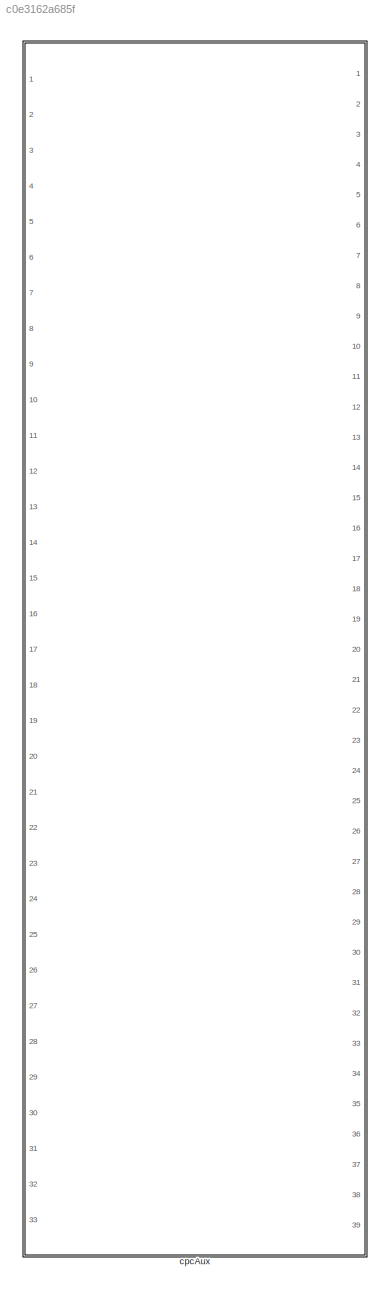
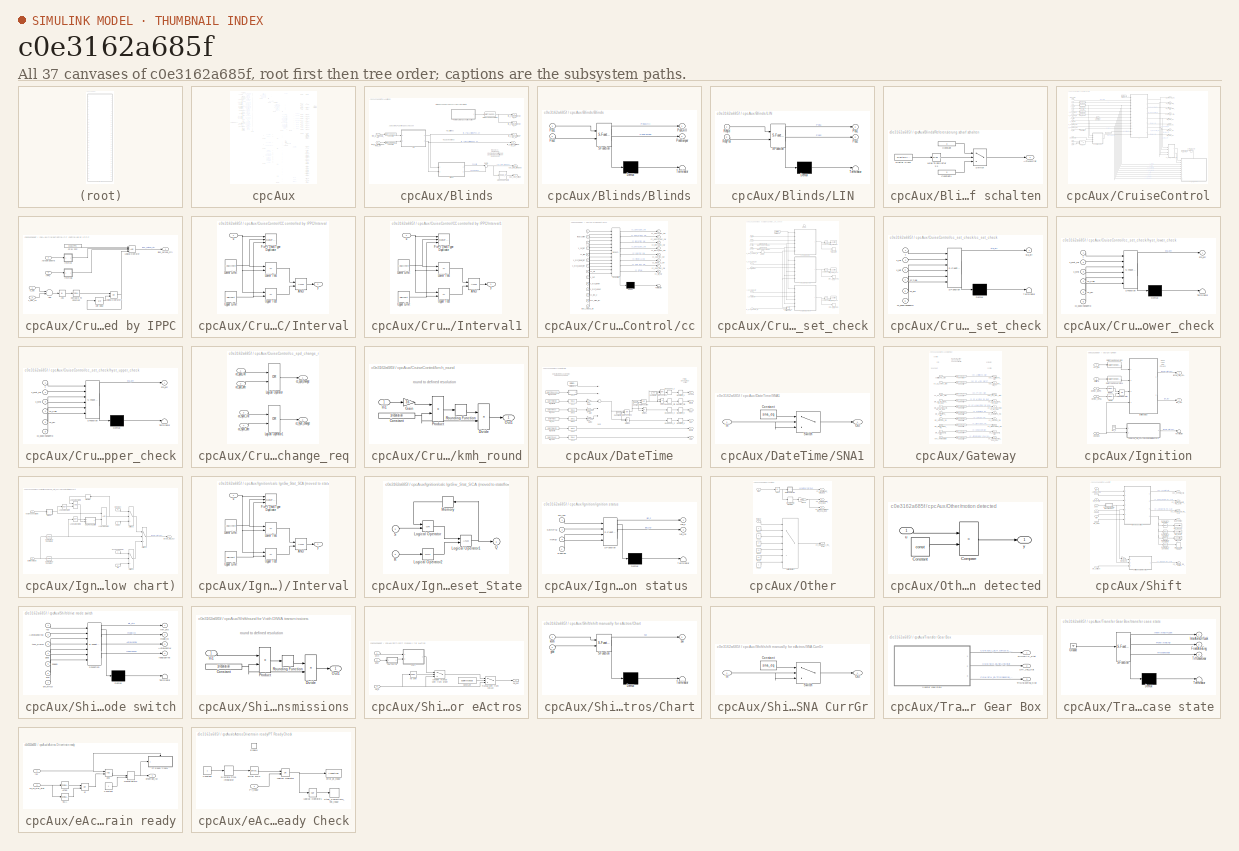
[diagram: thumbnail index - all 37 canvases of the model, root first then tree order]
MODEL slx_c0e3162a685f
KIND library
CONFIG AbsTol = auto
CONFIG FixedStep = auto
CONFIG MaxStep = auto
CONFIG MinStep = auto
CONFIG RelTol = 1e-3
CONFIG SampleTimeConstraint = Unconstrained
CONFIG Solver = ode45
CONFIG SolverMode = Auto
CONFIG SolverName = ode45
CONFIG StartTime = 0.0
CONFIG StopTime = 10.0
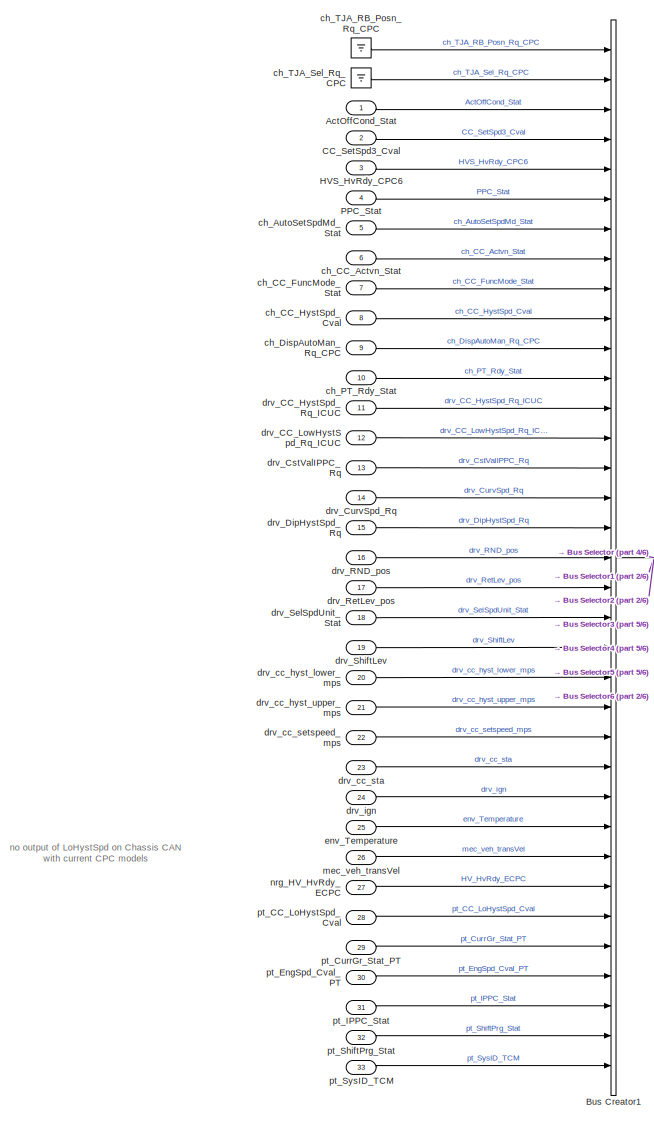
[diagram: cpcAux - part 1/6, top left region]
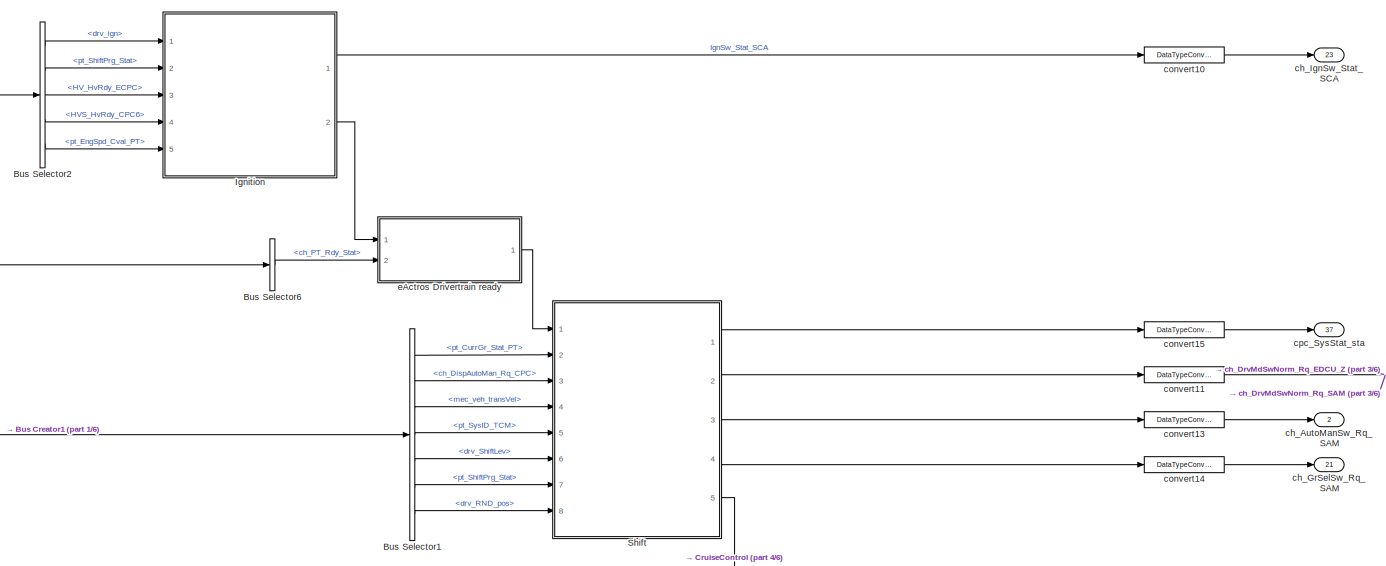
[diagram: cpcAux - part 2/6, top center region]
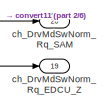
[diagram: cpcAux - part 3/6, top right region]
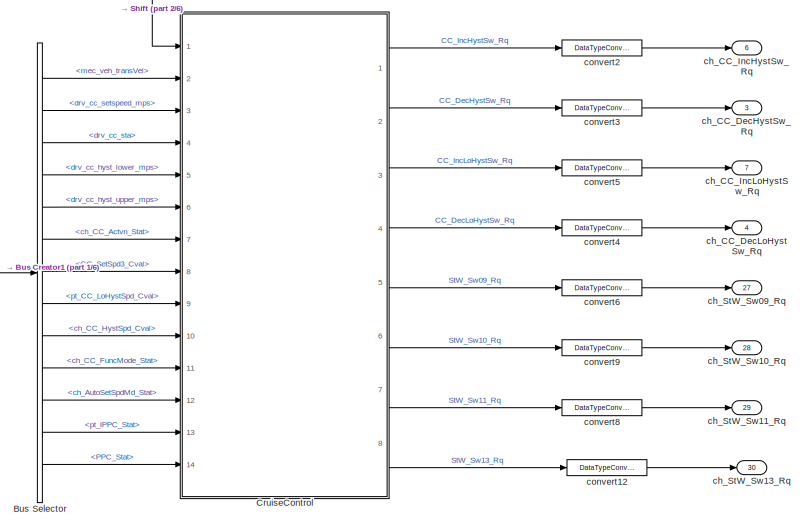
[diagram: cpcAux - part 4/6, top right region]
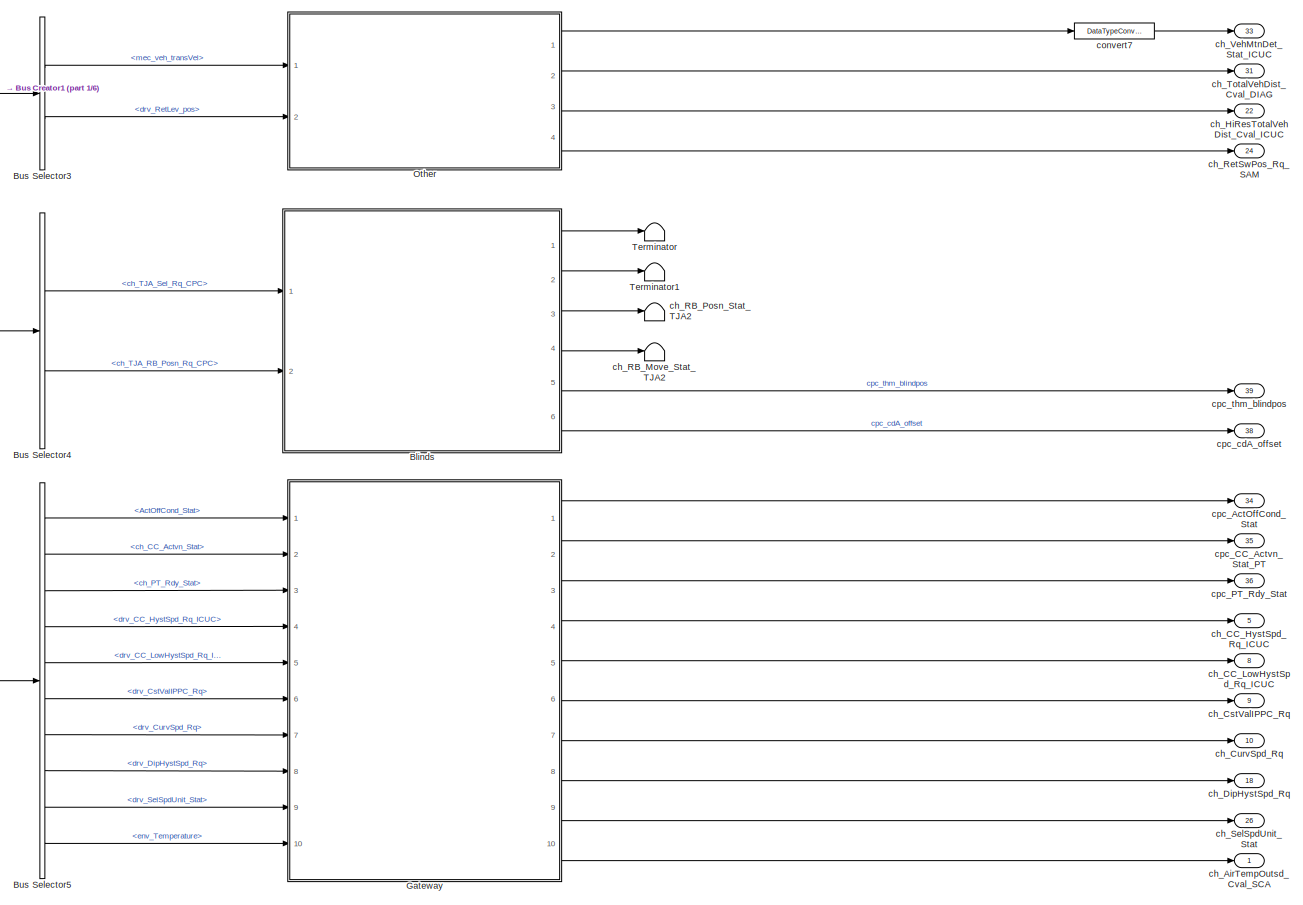
[diagram: cpcAux - part 5/6, central region]
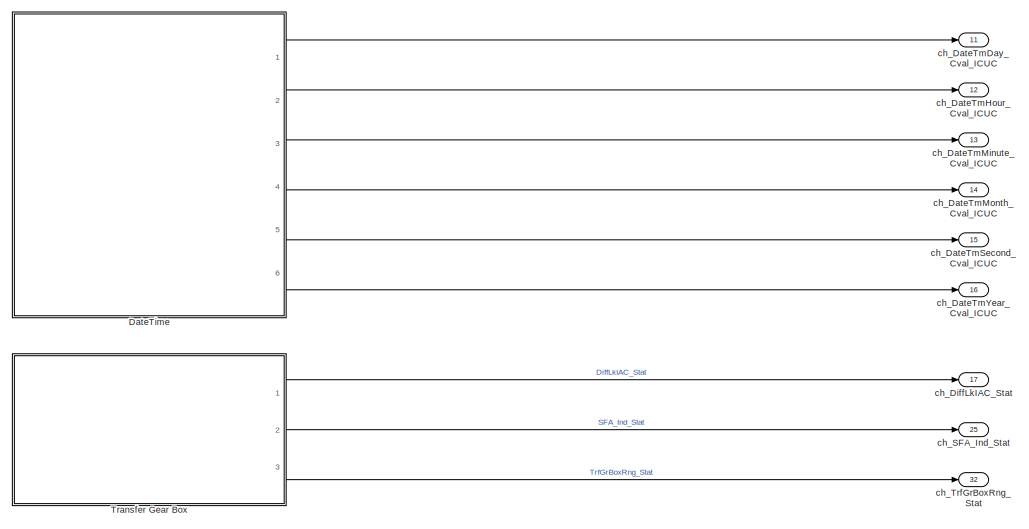
[diagram: cpcAux - part 6/6, bottom right region]
BLOCK [SubSystem] cpcAux
  Ports = [33, 39]
  RequestExecContextInheritance = off
  SystemSampleTime = 0.1
  TreatAsAtomicUnit = on
  Variant = off
BLOCK [Inport] cpcAux/ActOffCond_Stat
  IconDisplay = Port number
  OutDataTypeStr = double
BLOCK [SubSystem] cpcAux/Blinds
  Ports = [2, 6]
  RequestExecContextInheritance = off
  Variant = off
BLOCK [Lookup_n-D] cpcAux/Blinds/1-D Lookup Table
  BreakpointsForDimension1 = cdA_offset_sta
  InternalRulePriority = Speed
  NumberOfTableDimensions = 1
  Ports = [1, 1]
  RndMeth = Simplest
  Table = cdA_offset_m2
BLOCK [SubSystem] cpcAux/Blinds/Blinds
  ErrorFcn = Stateflow.Translate.translate
  PermitHierarchicalResolution = ExplicitOnly
  Ports = [2, 2]
  RequestExecContextInheritance = off
  SFBlockType = Chart
  TreatAsAtomicUnit = on
  Variant = off
BLOCK [Demux] cpcAux/Blinds/Blinds/ Demux 
  Outputs = 1
  Ports = [1, 1]
BLOCK [S-Function] cpcAux/Blinds/Blinds/ SFunction 
  EnableBusSupport = off
  FunctionName = sf_sfun
  PortCounts = [2 3]
  Ports = [2, 3]
  SFunctionDeploymentMode = off
  Tag = Stateflow S-Function cpcAux 6
BLOCK [Terminator] cpcAux/Blinds/Blinds/ Terminator 
BLOCK [Inport] cpcAux/Blinds/Blinds/Pos1
  IconDisplay = Port number
BLOCK [Inport] cpcAux/Blinds/Blinds/Pos2
  IconDisplay = Port number
  Port = 2
BLOCK [Outport] cpcAux/Blinds/Blinds/PosBumper
  IconDisplay = Port number
  Port = 2
BLOCK [Outport] cpcAux/Blinds/Blinds/PosGrill
  IconDisplay = Port number
BLOCK [DataTypeConversion] cpcAux/Blinds/Data Type Conversion
  RndMeth = Floor
  SaturateOnIntegerOverflow = off
BLOCK [SubSystem] cpcAux/Blinds/LIN
  ErrorFcn = Stateflow.Translate.translate
  PermitHierarchicalResolution = ExplicitOnly
  Ports = [2, 2]
  RequestExecContextInheritance = off
  SFBlockType = Chart
  TreatAsAtomicUnit = on
  Variant = off
BLOCK [Demux] cpcAux/Blinds/LIN/ Demux 
  Outputs = 1
  Ports = [1, 1]
BLOCK [S-Function] cpcAux/Blinds/LIN/ SFunction 
  EnableBusSupport = off
  FunctionName = sf_sfun
  PortCounts = [2 3]
  Ports = [2, 3]
  SFunctionDeploymentMode = off
  Tag = Stateflow S-Function cpcAux 7
BLOCK [Terminator] cpcAux/Blinds/LIN/ Terminator 
BLOCK [Outport] cpcAux/Blinds/LIN/Pos1
  IconDisplay = Port number
BLOCK [Outport] cpcAux/Blinds/LIN/Pos2
  IconDisplay = Port number
  Port = 2
BLOCK [Inport] cpcAux/Blinds/LIN/ReqId
  IconDisplay = Port number
BLOCK [Inport] cpcAux/Blinds/LIN/ReqPos
  IconDisplay = Port number
  Port = 2
BLOCK [SubSystem] cpcAux/Blinds/Referenzierung scharf schalten
  Ports = [0, 1]
  RequestExecContextInheritance = off
  Variant = off
BLOCK [Outport] cpcAux/Blinds/Referenzierung scharf schalten/ActMovStat
  IconDisplay = Port number
BLOCK [Constant] cpcAux/Blinds/Referenzierung scharf schalten/Constant
  Value = 3
BLOCK [Constant] cpcAux/Blinds/Referenzierung scharf schalten/Constant1
  Value = 0
BLOCK [DigitalClock] cpcAux/Blinds/Referenzierung scharf schalten/Digital Clock
  SampleTime = -1
BLOCK [Switch] cpcAux/Blinds/Referenzierung scharf schalten/Switch
  Criteria = u2 ~= 0
  InputSameDT = off
  SaturateOnIntegerOverflow = off
BLOCK [Reference] cpcAux/Blinds/Referenzierung scharf schalten/Wrap To Zero after 3 s  REF=simulink/Discontinuities/Wrap To Zero
  Ports = [1, 1]
  SourceBlock = simulink/Discontinuities/Wrap To Zero
  SourceType = Wrap To Zero
BLOCK [Sum] cpcAux/Blinds/Sum1
  IconShape = round
  InputSameDT = off
  Inputs = |++
  OutDataTypeStr = Inherit: Inherit via internal rule
  Ports = [2, 1]
  SaturateOnIntegerOverflow = off
BLOCK [DataTypeConversion] cpcAux/Blinds/convert1
  OutDataTypeStr = uint8
BLOCK [DataTypeConversion] cpcAux/Blinds/convert7
  OutDataTypeStr = uint8
BLOCK [Outport] cpcAux/Blinds/cpc_cdA_offset
  IconDisplay = Port number
  Port = 6
BLOCK [Outport] cpcAux/Blinds/cpc_thm_blindpos
  IconDisplay = Port number
  Port = 5
BLOCK [Outport] cpcAux/Blinds/lin_i_Tja1ActBlindPos_u4
  IconDisplay = Port number
BLOCK [Outport] cpcAux/Blinds/lin_i_Tja1ActMovStat_u4
  IconDisplay = Port number
  Port = 2
BLOCK [Outport] cpcAux/Blinds/lin_i_Tja2ActBlindPos_u4
  IconDisplay = Port number
  Port = 3
BLOCK [Outport] cpcAux/Blinds/lin_i_Tja2ActMovStat_u4
  IconDisplay = Port number
  Port = 4
BLOCK [Inport] cpcAux/Blinds/thm_g_TjaBlindPosReq_u4
  IconDisplay = Port number
  Port = 2
BLOCK [Inport] cpcAux/Blinds/thm_g_TjaReqId_u2
  IconDisplay = Port number
BLOCK [BusCreator] cpcAux/Bus Creator1
  DisplayOption = bar
  InheritFromInputs = on
  Inputs = 35
  Ports = [35, 1]
BLOCK [BusSelector] cpcAux/Bus Selector
  OutputSignals = mec_veh_transVel,drv_cc_setspeed_mps,drv_cc_sta,drv_cc_hyst_lower_mps,drv_cc_hyst_upper_mps,ch_CC_Actvn_Stat,CC_SetSpd3_Cval,pt_CC_LoHystSpd_Cval,ch_CC_HystSpd_Cval,ch_CC_FuncMode_Stat,ch_AutoSetSpdMd_Stat,pt_IPPC_Stat,PPC_Stat
  Ports = [1, 13]
BLOCK [BusSelector] cpcAux/Bus Selector1
  OutputSignals = pt_CurrGr_Stat_PT,ch_DispAutoMan_Rq_CPC,mec_veh_transVel,pt_SysID_TCM,drv_ShiftLev,pt_ShiftPrg_Stat,drv_RND_pos
  Ports = [1, 7]
BLOCK [BusSelector] cpcAux/Bus Selector2
  OutputSignals = drv_ign,pt_ShiftPrg_Stat,HV_HvRdy_ECPC,HVS_HvRdy_CPC6,pt_EngSpd_Cval_PT
  Ports = [1, 5]
BLOCK [BusSelector] cpcAux/Bus Selector3
  OutputSignals = mec_veh_transVel,drv_RetLev_pos
  Ports = [1, 2]
BLOCK [BusSelector] cpcAux/Bus Selector4
  OutputSignals = ch_TJA_Sel_Rq_CPC,ch_TJA_RB_Posn_Rq_CPC
  Ports = [1, 2]
BLOCK [BusSelector] cpcAux/Bus Selector5
  OutputSignals = ActOffCond_Stat,ch_CC_Actvn_Stat,ch_PT_Rdy_Stat,drv_CC_HystSpd_Rq_ICUC,drv_CC_LowHystSpd_Rq_ICUC,drv_CstValIPPC_Rq,drv_CurvSpd_Rq,drv_DipHystSpd_Rq,drv_SelSpdUnit_Stat,env_Temperature
  Ports = [1, 10]
BLOCK [BusSelector] cpcAux/Bus Selector6
  OutputSignals = ch_PT_Rdy_Stat
  Ports = [1, 1]
BLOCK [Inport] cpcAux/CC_SetSpd3_Cval
  IconDisplay = Port number
  OutDataTypeStr = double
  Port = 2
BLOCK [SubSystem] cpcAux/CruiseControl
  Ports = [14, 8]
  RequestExecContextInheritance = off
  Variant = off
BLOCK [Inport] cpcAux/CruiseControl/AutoSetSpdMd
  IconDisplay = Port number
  Port = 12
BLOCK [Constant] cpcAux/CruiseControl/CC by PPC
  Value = bCCbyPPC
BLOCK [SubSystem] cpcAux/CruiseControl/CC controlled by IPPC
  Ports = [4, 1]
  RequestExecContextInheritance = off
  Variant = off
BLOCK [Abs] cpcAux/CruiseControl/CC controlled by IPPC/Abs
  SaturateOnIntegerOverflow = off
BLOCK [Sum] cpcAux/CruiseControl/CC controlled by IPPC/Add
  InputSameDT = off
  Inputs = +-
  OutDataTypeStr = Inherit: Inherit via internal rule
  Ports = [2, 1]
  SaturateOnIntegerOverflow = off
BLOCK [Inport] cpcAux/CruiseControl/CC controlled by IPPC/AutoSetSpdMd
  IconDisplay = Port number
  Port = 3
BLOCK [Constant] cpcAux/CruiseControl/CC controlled by IPPC/CC by PPC
  Value = bCCbyPPC
BLOCK [Reference] cpcAux/CruiseControl/CC controlled by IPPC/Compare To Constant  REF=simulink/Logic and Bit
Operations/Compare
To Constant
  Ports = [1, 1]
  SourceBlock = simulink/Logic and Bit\nOperations/Compare\nTo Constant
  SourceType = Compare To Constant
BLOCK [Inport] cpcAux/CruiseControl/CC controlled by IPPC/IPPC
  IconDisplay = Port number
  Port = 4
BLOCK [SubSystem] cpcAux/CruiseControl/CC controlled by IPPC/Interval
  AttributesFormatString = %<lowlimit> ... %<uplimit>
  Ports = [1, 1]
  RequestExecContextInheritance = off
  Variant = off
BLOCK [Logic] cpcAux/CruiseControl/CC controlled by IPPC/Interval/AND
  AllPortsSameDT = off
  OutDataTypeStr = boolean
  Ports = [2, 1]
BLOCK [DataTypeDuplicate] cpcAux/CruiseControl/CC controlled by IPPC/Interval/FixPt Data Type Duplicate
  DisableCoverage = on
  NumInputPorts = 3
  Ports = [3]
BLOCK [Constant] cpcAux/CruiseControl/CC controlled by IPPC/Interval/Lower Limit
  DisableCoverage = on
  OutDataTypeStr = Inherit: Inherit via back propagation
  Value = lowlimit
BLOCK [RelationalOperator] cpcAux/CruiseControl/CC controlled by IPPC/Interval/Lower Test
  DisableCoverage = on
  InputSameDT = off
  Operator = <=
  OutDataTypeStr = boolean
  Ports = [2, 1]
  ZeroCross = off
BLOCK [Constant] cpcAux/CruiseControl/CC controlled by IPPC/Interval/Upper Limit
  DisableCoverage = on
  OutDataTypeStr = Inherit: Inherit via back propagation
  Value = uplimit
BLOCK [RelationalOperator] cpcAux/CruiseControl/CC controlled by IPPC/Interval/Upper Test
  DisableCoverage = on
  InputSameDT = off
  Operator = <=
  OutDataTypeStr = boolean
  Ports = [2, 1]
  ZeroCross = off
BLOCK [Inport] cpcAux/CruiseControl/CC controlled by IPPC/Interval/u
  IconDisplay = Port number
BLOCK [Outport] cpcAux/CruiseControl/CC controlled by IPPC/Interval/y
  IconDisplay = Port number
BLOCK [SubSystem] cpcAux/CruiseControl/CC controlled by IPPC/Interval1
  AttributesFormatString = %<lowlimit> ... %<uplimit>
  Ports = [1, 1]
  RequestExecContextInheritance = off
  Variant = off
BLOCK [Logic] cpcAux/CruiseControl/CC controlled by IPPC/Interval1/AND
  AllPortsSameDT = off
  OutDataTypeStr = boolean
  Ports = [2, 1]
BLOCK [DataTypeDuplicate] cpcAux/CruiseControl/CC controlled by IPPC/Interval1/FixPt Data Type Duplicate
  DisableCoverage = on
  NumInputPorts = 3
  Ports = [3]
BLOCK [Constant] cpcAux/CruiseControl/CC controlled by IPPC/Interval1/Lower Limit
  DisableCoverage = on
  OutDataTypeStr = Inherit: Inherit via back propagation
  Value = lowlimit
BLOCK [RelationalOperator] cpcAux/CruiseControl/CC controlled by IPPC/Interval1/Lower Test
  DisableCoverage = on
  InputSameDT = off
  Operator = <=
  OutDataTypeStr = boolean
  Ports = [2, 1]
  ZeroCross = off
BLOCK [Constant] cpcAux/CruiseControl/CC controlled by IPPC/Interval1/Upper Limit
  DisableCoverage = on
  OutDataTypeStr = Inherit: Inherit via back propagation
  Value = uplimit
BLOCK [RelationalOperator] cpcAux/CruiseControl/CC controlled by IPPC/Interval1/Upper Test
  DisableCoverage = on
  InputSameDT = off
  Operator = <=
  OutDataTypeStr = boolean
  Ports = [2, 1]
  ZeroCross = off
BLOCK [Inport] cpcAux/CruiseControl/CC controlled by IPPC/Interval1/u
  IconDisplay = Port number
BLOCK [Outport] cpcAux/CruiseControl/CC controlled by IPPC/Interval1/y
  IconDisplay = Port number
BLOCK [Logic] cpcAux/CruiseControl/CC controlled by IPPC/Logical Operator
  AllPortsSameDT = off
  Inputs = 4
  OutDataTypeStr = boolean
  Ports = [4, 1]
BLOCK [Logic] cpcAux/CruiseControl/CC controlled by IPPC/Logical Operator1
  AllPortsSameDT = off
  Operator = OR
  OutDataTypeStr = boolean
  Ports = [2, 1]
BLOCK [UnitDelay] cpcAux/CruiseControl/CC controlled by IPPC/Unit Delay
  InputProcessing = Elements as channels (sample based)
  SampleTime = -1
BLOCK [Outport] cpcAux/CruiseControl/CC controlled by IPPC/ippc_setspd_ctrl
  IconDisplay = Port number
BLOCK [Inport] cpcAux/CruiseControl/CC controlled by IPPC/v_set
  IconDisplay = Port number
BLOCK [Inport] cpcAux/CruiseControl/CC controlled by IPPC/v_set_rq
  IconDisplay = Port number
  Port = 2
BLOCK [Outport] cpcAux/CruiseControl/CC_DecHystSw_Rq
  IconDisplay = Port number
  Port = 2
BLOCK [Outport] cpcAux/CruiseControl/CC_DecLoHystSw_Rq
  IconDisplay = Port number
  Port = 4
BLOCK [Outport] cpcAux/CruiseControl/CC_IncHystSw_Rq
  IconDisplay = Port number
BLOCK [Outport] cpcAux/CruiseControl/CC_IncLoHystSw_Rq
  IconDisplay = Port number
  Port = 3
BLOCK [Inport] cpcAux/CruiseControl/CTP
  IconDisplay = Port number
  Port = 14
BLOCK [Reference] cpcAux/CruiseControl/Compare To Constant  REF=simulink/Logic and Bit
Operations/Compare
To Constant
  Ports = [1, 1]
  SourceBlock = simulink/Logic and Bit\nOperations/Compare\nTo Constant
  SourceType = Compare To Constant
BLOCK [Reference] cpcAux/CruiseControl/Compare To Zero  REF=simulink/Logic and Bit
Operations/Compare
To Zero
  Ports = [1, 1]
  SourceBlock = simulink/Logic and Bit\nOperations/Compare\nTo Zero
  SourceType = Compare To Zero
BLOCK [DigitalClock] cpcAux/CruiseControl/Digital Clock
  SampleTime = -1
BLOCK [Inport] cpcAux/CruiseControl/PPC
  IconDisplay = Port number
  Port = 13
BLOCK [Switch] cpcAux/CruiseControl/PPC or CTP
  InputSameDT = off
  SaturateOnIntegerOverflow = off
  Threshold = 15
BLOCK [Outport] cpcAux/CruiseControl/StW_Sw09_Rq
  IconDisplay = Port number
  Port = 5
BLOCK [Outport] cpcAux/CruiseControl/StW_Sw10_Rq
  IconDisplay = Port number
  Port = 6
BLOCK [Outport] cpcAux/CruiseControl/StW_Sw11_Rq
  IconDisplay = Port number
  Port = 7
BLOCK [Outport] cpcAux/CruiseControl/StW_Sw13_Rq
  IconDisplay = Port number
  Port = 8
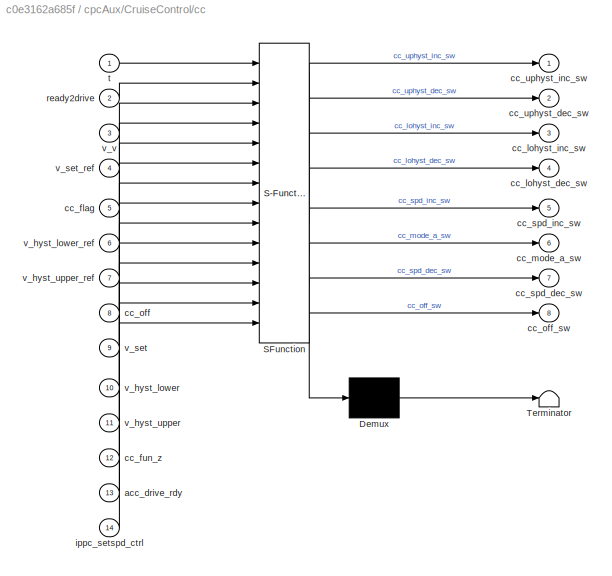
BLOCK [SubSystem] cpcAux/CruiseControl/cc
  ErrorFcn = Stateflow.Translate.translate
  PermitHierarchicalResolution = ExplicitOnly
  Ports = [14, 8]
  RequestExecContextInheritance = off
  SFBlockType = Chart
  TreatAsAtomicUnit = on
  Variant = off
BLOCK [Demux] cpcAux/CruiseControl/cc/ Demux 
  Outputs = 1
  Ports = [1, 1]
BLOCK [S-Function] cpcAux/CruiseControl/cc/ SFunction 
  EnableBusSupport = off
  FunctionName = sf_sfun
  Parameters = CCFunc
  PortCounts = [14 9]
  Ports = [14, 9]
  SFunctionDeploymentMode = off
  Tag = Stateflow S-Function cpcAux 11
BLOCK [Terminator] cpcAux/CruiseControl/cc/ Terminator 
BLOCK [Inport] cpcAux/CruiseControl/cc/acc_drive_rdy
  IconDisplay = Port number
  Port = 13
BLOCK [Inport] cpcAux/CruiseControl/cc/cc_flag
  IconDisplay = Port number
  Port = 5
BLOCK [Inport] cpcAux/CruiseControl/cc/cc_fun_z
  IconDisplay = Port number
  Port = 12
BLOCK [Outport] cpcAux/CruiseControl/cc/cc_lohyst_dec_sw
  IconDisplay = Port number
  Port = 4
BLOCK [Outport] cpcAux/CruiseControl/cc/cc_lohyst_inc_sw
  IconDisplay = Port number
  Port = 3
BLOCK [Outport] cpcAux/CruiseControl/cc/cc_mode_a_sw
  IconDisplay = Port number
  Port = 6
BLOCK [Inport] cpcAux/CruiseControl/cc/cc_off
  IconDisplay = Port number
  Port = 8
BLOCK [Outport] cpcAux/CruiseControl/cc/cc_off_sw
  IconDisplay = Port number
  Port = 8
BLOCK [Outport] cpcAux/CruiseControl/cc/cc_spd_dec_sw
  IconDisplay = Port number
  Port = 7
BLOCK [Outport] cpcAux/CruiseControl/cc/cc_spd_inc_sw
  IconDisplay = Port number
  Port = 5
BLOCK [Outport] cpcAux/CruiseControl/cc/cc_uphyst_dec_sw
  IconDisplay = Port number
  Port = 2
BLOCK [Outport] cpcAux/CruiseControl/cc/cc_uphyst_inc_sw
  IconDisplay = Port number
BLOCK [Inport] cpcAux/CruiseControl/cc/ippc_setspd_ctrl
  IconDisplay = Port number
  Port = 14
BLOCK [Inport] cpcAux/CruiseControl/cc/ready2drive
  IconDisplay = Port number
  Port = 2
BLOCK [Inport] cpcAux/CruiseControl/cc/t
  IconDisplay = Port number
BLOCK [Inport] cpcAux/CruiseControl/cc/v_hyst_lower
  IconDisplay = Port number
  Port = 10
BLOCK [Inport] cpcAux/CruiseControl/cc/v_hyst_lower_ref
  IconDisplay = Port number
  Port = 6
BLOCK [Inport] cpcAux/CruiseControl/cc/v_hyst_upper
  IconDisplay = Port number
  Port = 11
BLOCK [Inport] cpcAux/CruiseControl/cc/v_hyst_upper_ref
  IconDisplay = Port number
  Port = 7
BLOCK [Inport] cpcAux/CruiseControl/cc/v_set
  IconDisplay = Port number
  Port = 9
BLOCK [Inport] cpcAux/CruiseControl/cc/v_set_ref
  IconDisplay = Port number
  Port = 4
BLOCK [Inport] cpcAux/CruiseControl/cc/v_v
  IconDisplay = Port number
  Port = 3
BLOCK [Inport] cpcAux/CruiseControl/cc_fun
  IconDisplay = Port number
  Port = 11
BLOCK [Inport] cpcAux/CruiseControl/cc_rq
  IconDisplay = Port number
  Port = 4
BLOCK [SubSystem] cpcAux/CruiseControl/cc_set_check
  Ports = [10, 0, 1]
  RequestExecContextInheritance = off
  Variant = off
BLOCK [DataTypeConversion] cpcAux/CruiseControl/cc_set_check/Data Type Conversion1
  OutDataTypeStr = boolean
  RndMeth = Floor
  SaturateOnIntegerOverflow = off
BLOCK [DataTypeConversion] cpcAux/CruiseControl/cc_set_check/Data Type Conversion2
  OutDataTypeStr = boolean
  RndMeth = Floor
  SaturateOnIntegerOverflow = off
BLOCK [DigitalClock] cpcAux/CruiseControl/cc_set_check/Digital Clock
  SampleTime = -1
BLOCK [EnablePort] cpcAux/CruiseControl/cc_set_check/Enable
  Ports = []
BLOCK [Logic] cpcAux/CruiseControl/cc_set_check/Logical Operator
  AllPortsSameDT = off
  Operator = NOT
  OutDataTypeStr = boolean
  Ports = [1, 1]
BLOCK [Logic] cpcAux/CruiseControl/cc_set_check/Logical Operator1
  AllPortsSameDT = off
  Operator = NOT
  OutDataTypeStr = boolean
  Ports = [1, 1]
BLOCK [Logic] cpcAux/CruiseControl/cc_set_check/Logical Operator2
  AllPortsSameDT = off
  Operator = NOT
  OutDataTypeStr = boolean
  Ports = [1, 1]
BLOCK [Memory] cpcAux/CruiseControl/cc_set_check/Memory
  InheritSampleTime = on
BLOCK [Stop] cpcAux/CruiseControl/cc_set_check/Stop__error_lower_hyst
  AttributesFormatString = %<Description>
  Description = The simulation completes the current time step before terminating
BLOCK [Stop] cpcAux/CruiseControl/cc_set_check/Stop__error_setSpeed
  AttributesFormatString = %<Description>
  Description = The simulation completes the current time step before terminating
BLOCK [Stop] cpcAux/CruiseControl/cc_set_check/Stop__error_upper_hyst
  AttributesFormatString = %<Description>
  Description = The simulation completes the current time step before terminating
BLOCK [Logic] cpcAux/CruiseControl/cc_set_check/cc or upper hyst switch used
  AllPortsSameDT = off
  Operator = OR
  OutDataTypeStr = boolean
  Ports = [2, 1]
BLOCK [Inport] cpcAux/CruiseControl/cc_set_check/cc_flag
  IconDisplay = Port number
  Port = 4
BLOCK [Inport] cpcAux/CruiseControl/cc_set_check/cc_hyst_change_rq
  IconDisplay = Port number
  Port = 2
BLOCK [Inport] cpcAux/CruiseControl/cc_set_check/cc_off
  IconDisplay = Port number
  Port = 7
BLOCK [SubSystem] cpcAux/CruiseControl/cc_set_check/cc_set_check
  ErrorFcn = Stateflow.Translate.translate
  PermitHierarchicalResolution = ExplicitOnly
  Ports = [6, 1]
  RequestExecContextInheritance = off
  SFBlockType = Chart
  TreatAsAtomicUnit = on
  Variant = off
BLOCK [Demux] cpcAux/CruiseControl/cc_set_check/cc_set_check/ Demux 
  Outputs = 1
  Ports = [1, 1]
BLOCK [S-Function] cpcAux/CruiseControl/cc_set_check/cc_set_check/ SFunction 
  EnableBusSupport = off
  FunctionName = sf_sfun
  PortCounts = [6 2]
  Ports = [6, 2]
  SFunctionDeploymentMode = off
  Tag = Stateflow S-Function cpcAux 8
BLOCK [Terminator] cpcAux/CruiseControl/cc_set_check/cc_set_check/ Terminator 
BLOCK [Inport] cpcAux/CruiseControl/cc_set_check/cc_set_check/cc_flag
  IconDisplay = Port number
  Port = 4
BLOCK [Inport] cpcAux/CruiseControl/cc_set_check/cc_set_check/cc_off
  IconDisplay = Port number
  Port = 5
BLOCK [Inport] cpcAux/CruiseControl/cc_set_check/cc_set_check/cc_spdChangeRq
  IconDisplay = Port number
  Port = 6
BLOCK [Outport] cpcAux/CruiseControl/cc_set_check/cc_set_check/sta_err
  IconDisplay = Port number
BLOCK [Inport] cpcAux/CruiseControl/cc_set_check/cc_set_check/t
  IconDisplay = Port number
BLOCK [Inport] cpcAux/CruiseControl/cc_set_check/cc_set_check/v_ref
  IconDisplay = Port number
  Port = 2
BLOCK [Inport] cpcAux/CruiseControl/cc_set_check/cc_set_check/v_set
  IconDisplay = Port number
  Port = 3
BLOCK [Inport] cpcAux/CruiseControl/cc_set_check/cc_spd_change_rq
  IconDisplay = Port number
BLOCK [Assertion] cpcAux/CruiseControl/cc_set_check/error_lower_hyst
  AssertionFailFcn = fprintf(2,'cpcAux: DRV request of lower CC hysteresis is not accepted by CPC \n')
  StopWhenAssertionFail = off
BLOCK [Assertion] cpcAux/CruiseControl/cc_set_check/error_setSpeed
  AssertionFailFcn = fprintf(2,'cpcAux: DRV request of set speed is not accepted by CPC \n')
  StopWhenAssertionFail = off
BLOCK [Assertion] cpcAux/CruiseControl/cc_set_check/error_upper_hyst
  AssertionFailFcn = fprintf(2,'cpcAux: DRV request of upper CC hysteresis is not accepted by CPC \n')
  StopWhenAssertionFail = off
BLOCK [SubSystem] cpcAux/CruiseControl/cc_set_check/hyst_lower_check
  ErrorFcn = Stateflow.Translate.translate
  PermitHierarchicalResolution = ExplicitOnly
  Ports = [6, 1]
  RequestExecContextInheritance = off
  SFBlockType = Chart
  TreatAsAtomicUnit = on
  Variant = off
BLOCK [Demux] cpcAux/CruiseControl/cc_set_check/hyst_lower_check/ Demux 
  Outputs = 1
  Ports = [1, 1]
BLOCK [S-Function] cpcAux/CruiseControl/cc_set_check/hyst_lower_check/ SFunction 
  EnableBusSupport = off
  FunctionName = sf_sfun
  PortCounts = [6 2]
  Ports = [6, 2]
  SFunctionDeploymentMode = off
  Tag = Stateflow S-Function cpcAux 9
BLOCK [Terminator] cpcAux/CruiseControl/cc_set_check/hyst_lower_check/ Terminator 
BLOCK [Inport] cpcAux/CruiseControl/cc_set_check/hyst_lower_check/cc_flag
  IconDisplay = Port number
  Port = 4
BLOCK [Inport] cpcAux/CruiseControl/cc_set_check/hyst_lower_check/cc_off
  IconDisplay = Port number
  Port = 5
BLOCK [Inport] cpcAux/CruiseControl/cc_set_check/hyst_lower_check/cc_spdChangeRq
  IconDisplay = Port number
  Port = 6
BLOCK [Outport] cpcAux/CruiseControl/cc_set_check/hyst_lower_check/sta_err
  IconDisplay = Port number
BLOCK [Inport] cpcAux/CruiseControl/cc_set_check/hyst_lower_check/t
  IconDisplay = Port number
BLOCK [Inport] cpcAux/CruiseControl/cc_set_check/hyst_lower_check/v_hyst
  IconDisplay = Port number
  Port = 3
BLOCK [Inport] cpcAux/CruiseControl/cc_set_check/hyst_lower_check/v_hyst_ref
  IconDisplay = Port number
  Port = 2
BLOCK [SubSystem] cpcAux/CruiseControl/cc_set_check/hyst_upper_check
  ErrorFcn = Stateflow.Translate.translate
  PermitHierarchicalResolution = ExplicitOnly
  Ports = [6, 1]
  RequestExecContextInheritance = off
  SFBlockType = Chart
  TreatAsAtomicUnit = on
  Variant = off
BLOCK [Demux] cpcAux/CruiseControl/cc_set_check/hyst_upper_check/ Demux 
  Outputs = 1
  Ports = [1, 1]
BLOCK [S-Function] cpcAux/CruiseControl/cc_set_check/hyst_upper_check/ SFunction 
  EnableBusSupport = off
  FunctionName = sf_sfun
  PortCounts = [6 2]
  Ports = [6, 2]
  SFunctionDeploymentMode = off
  Tag = Stateflow S-Function cpcAux 10
BLOCK [Terminator] cpcAux/CruiseControl/cc_set_check/hyst_upper_check/ Terminator 
BLOCK [Inport] cpcAux/CruiseControl/cc_set_check/hyst_upper_check/cc_flag
  IconDisplay = Port number
  Port = 4
BLOCK [Inport] cpcAux/CruiseControl/cc_set_check/hyst_upper_check/cc_off
  IconDisplay = Port number
  Port = 5
BLOCK [Inport] cpcAux/CruiseControl/cc_set_check/hyst_upper_check/cc_spdChangeRq
  IconDisplay = Port number
  Port = 6
BLOCK [Outport] cpcAux/CruiseControl/cc_set_check/hyst_upper_check/sta_err
  IconDisplay = Port number
BLOCK [Inport] cpcAux/CruiseControl/cc_set_check/hyst_upper_check/t
  IconDisplay = Port number
BLOCK [Inport] cpcAux/CruiseControl/cc_set_check/hyst_upper_check/v_hyst
  IconDisplay = Port number
  Port = 3
BLOCK [Inport] cpcAux/CruiseControl/cc_set_check/hyst_upper_check/v_hyst_ref
  IconDisplay = Port number
  Port = 2
BLOCK [Inport] cpcAux/CruiseControl/cc_set_check/v_hyst_lower
  IconDisplay = Port number
  Port = 9
BLOCK [Inport] cpcAux/CruiseControl/cc_set_check/v_hyst_lower_ref
  IconDisplay = Port number
  Port = 5
BLOCK [Inport] cpcAux/CruiseControl/cc_set_check/v_hyst_upper
  IconDisplay = Port number
  Port = 10
BLOCK [Inport] cpcAux/CruiseControl/cc_set_check/v_hyst_upper_ref
  IconDisplay = Port number
  Port = 6
BLOCK [Inport] cpcAux/CruiseControl/cc_set_check/v_ref
  IconDisplay = Port number
  Port = 3
BLOCK [Inport] cpcAux/CruiseControl/cc_set_check/v_set
  IconDisplay = Port number
  Port = 8
BLOCK [SubSystem] cpcAux/CruiseControl/cc_spd_change_req
  Ports = [4, 2]
  RequestExecContextInheritance = off
  Variant = off
BLOCK [Logic] cpcAux/CruiseControl/cc_spd_change_req/Logical Operator
  AllPortsSameDT = off
  Operator = OR
  OutDataTypeStr = boolean
  Ports = [2, 1]
BLOCK [Logic] cpcAux/CruiseControl/cc_spd_change_req/Logical Operator1
  AllPortsSameDT = off
  Operator = OR
  OutDataTypeStr = boolean
  Ports = [2, 1]
BLOCK [Outport] cpcAux/CruiseControl/cc_spd_change_req/cc_hyst_change
  IconDisplay = Port number
  Port = 2
BLOCK [Inport] cpcAux/CruiseControl/cc_spd_change_req/cc_hyst_dec
  IconDisplay = Port number
  Port = 4
BLOCK [Inport] cpcAux/CruiseControl/cc_spd_change_req/cc_hyst_inc
  IconDisplay = Port number
  Port = 3
BLOCK [Inport] cpcAux/CruiseControl/cc_spd_change_req/cc_spc_dec
  IconDisplay = Port number
  Port = 2
BLOCK [Outport] cpcAux/CruiseControl/cc_spd_change_req/cc_spd_change
  IconDisplay = Port number
BLOCK [Inport] cpcAux/CruiseControl/cc_spd_change_req/cc_spd_inc
  IconDisplay = Port number
BLOCK [Inport] cpcAux/CruiseControl/cc_stat
  IconDisplay = Port number
  Port = 7
BLOCK [DataTypeConversion] cpcAux/CruiseControl/convert1
  OutDataTypeStr = uint8
BLOCK [DataTypeConversion] cpcAux/CruiseControl/convert7
  OutDataTypeStr = uint8
BLOCK [SubSystem] cpcAux/CruiseControl/kmh_round
  AttributesFormatString = %<resolution>
  Ports = [1, 1]
  RequestExecContextInheritance = off
  Variant = off
BLOCK [Constant] cpcAux/CruiseControl/kmh_round/Constant
  AttributesFormatString = %<Value>
  Value = 1/resolution
BLOCK [Product] cpcAux/CruiseControl/kmh_round/Divide
  InputSameDT = off
  Inputs = */
  OutDataTypeStr = Inherit: Inherit via internal rule
  Ports = [2, 1]
  RndMeth = Floor
  SaturateOnIntegerOverflow = off
BLOCK [Gain] cpcAux/CruiseControl/kmh_round/Gain
  AttributesFormatString = %<Gain>
  Gain = 3.6
  OutDataTypeStr = Inherit: Inherit via internal rule
  ParamDataTypeStr = Inherit: Inherit via internal rule
  SaturateOnIntegerOverflow = off
BLOCK [Inport] cpcAux/CruiseControl/kmh_round/In1
  IconDisplay = Port number
BLOCK [Outport] cpcAux/CruiseControl/kmh_round/Out1
  IconDisplay = Port number
BLOCK [Product] cpcAux/CruiseControl/kmh_round/Product
  InputSameDT = off
  OutDataTypeStr = Inherit: Inherit via internal rule
  Ports = [2, 1]
  RndMeth = Floor
  SaturateOnIntegerOverflow = off
BLOCK [Rounding] cpcAux/CruiseControl/kmh_round/Rounding Function
  Operator = round
BLOCK [Reference] cpcAux/CruiseControl/kmh_round1  REF=cpcAux/cpcAux/CruiseControl/kmh_round
  AttributesFormatString = %<resolution>
  Ports = [1, 1]
  SourceBlock = cpcAux/cpcAux/CruiseControl/kmh_round
  SourceType = Speed converter
BLOCK [Reference] cpcAux/CruiseControl/kmh_round2  REF=cpcAux/cpcAux/CruiseControl/kmh_round
  AttributesFormatString = %<resolution>
  Ports = [1, 1]
  SourceBlock = cpcAux/cpcAux/CruiseControl/kmh_round
  SourceType = Speed converter
BLOCK [Reference] cpcAux/CruiseControl/kmh_round3  REF=cpcAux/cpcAux/CruiseControl/kmh_round
  AttributesFormatString = %<resolution>
  Ports = [1, 1]
  SourceBlock = cpcAux/cpcAux/CruiseControl/kmh_round
  SourceType = Speed converter
BLOCK [Inport] cpcAux/CruiseControl/ready2drive
  IconDisplay = Port number
BLOCK [Constant] cpcAux/CruiseControl/sl_z2
  OutDataTypeStr = Inherit: Inherit via back propagation
  Value = 0
BLOCK [Inport] cpcAux/CruiseControl/v_hyst_lower_kmh
  IconDisplay = Port number
  Port = 9
BLOCK [Inport] cpcAux/CruiseControl/v_hyst_lower_rq
  IconDisplay = Port number
  Port = 5
BLOCK [Inport] cpcAux/CruiseControl/v_hyst_upper_kmh
  IconDisplay = Port number
  Port = 10
BLOCK [Inport] cpcAux/CruiseControl/v_hyst_upper_rq
  IconDisplay = Port number
  Port = 6
BLOCK [Inport] cpcAux/CruiseControl/v_set_kmh
  IconDisplay = Port number
  Port = 8
BLOCK [Inport] cpcAux/CruiseControl/v_set_rq
  IconDisplay = Port number
  Port = 3
BLOCK [Inport] cpcAux/CruiseControl/v_v
  IconDisplay = Port number
  Port = 2
BLOCK [SubSystem] cpcAux/DateTime
  Ports = [0, 6]
  RequestExecContextInheritance = off
  Variant = off
BLOCK [Constant] cpcAux/DateTime/Constant
  Value = 3600
BLOCK [Constant] cpcAux/DateTime/Constant1
  Value = 60
BLOCK [Constant] cpcAux/DateTime/Constant2
  Value = 86400
BLOCK [DeadZone] cpcAux/DateTime/DeadZone_d
BLOCK [DeadZone] cpcAux/DateTime/DeadZone_h
BLOCK [DeadZone] cpcAux/DateTime/DeadZone_min
BLOCK [DeadZone] cpcAux/DateTime/DeadZone_s
BLOCK [DigitalClock] cpcAux/DateTime/Digital Clock
  SampleTime = -1
BLOCK [Product] cpcAux/DateTime/Divide
  InputSameDT = off
  Inputs = */
  OutDataTypeStr = Inherit: Inherit via internal rule
  Ports = [2, 1]
  RndMeth = Floor
  SaturateOnIntegerOverflow = off
BLOCK [Product] cpcAux/DateTime/Divide1
  InputSameDT = off
  Inputs = */
  OutDataTypeStr = Inherit: Inherit via internal rule
  Ports = [2, 1]
  RndMeth = Floor
  SaturateOnIntegerOverflow = off
BLOCK [Product] cpcAux/DateTime/Divide2
  InputSameDT = off
  Inputs = */
  OutDataTypeStr = Inherit: Inherit via internal rule
  Ports = [2, 1]
  RndMeth = Floor
  SaturateOnIntegerOverflow = off
BLOCK [Gain] cpcAux/DateTime/Gain
  Gain = 3600
  OutDataTypeStr = Inherit: Inherit via internal rule
  ParamDataTypeStr = Inherit: Inherit via internal rule
  SaturateOnIntegerOverflow = off
BLOCK [Gain] cpcAux/DateTime/Gain1
  Gain = 60
  OutDataTypeStr = Inherit: Inherit via internal rule
  ParamDataTypeStr = Inherit: Inherit via internal rule
  SaturateOnIntegerOverflow = off
BLOCK [Gain] cpcAux/DateTime/Gain2
  Gain = 86400
  OutDataTypeStr = Inherit: Inherit via internal rule
  ParamDataTypeStr = Inherit: Inherit via internal rule
  SaturateOnIntegerOverflow = off
BLOCK [Math] cpcAux/DateTime/Math Function
  Operator = rem
  Ports = [2, 1]
BLOCK [Math] cpcAux/DateTime/Math Function1
  Operator = rem
  Ports = [2, 1]
BLOCK [Math] cpcAux/DateTime/Math Function2
  Operator = rem
  Ports = [2, 1]
BLOCK [Quantizer] cpcAux/DateTime/Quantizer_d
  QuantizationInterval = 1
BLOCK [Quantizer] cpcAux/DateTime/Quantizer_h
  QuantizationInterval = 1
BLOCK [Quantizer] cpcAux/DateTime/Quantizer_min
  QuantizationInterval = 1
BLOCK [Quantizer] cpcAux/DateTime/Quantizer_s
  QuantizationInterval = 1
BLOCK [SubSystem] cpcAux/DateTime/SNA1
  AttributesFormatString = x > %<sna_max>: %<sna_eq>
  Ports = [1, 1]
  RequestExecContextInheritance = off
  Variant = off
BLOCK [Constant] cpcAux/DateTime/SNA1/Constant
  Value = sna_eq
BLOCK [Inport] cpcAux/DateTime/SNA1/In
  IconDisplay = Port number
BLOCK [Outport] cpcAux/DateTime/SNA1/Out
  IconDisplay = Port number
BLOCK [Switch] cpcAux/DateTime/SNA1/Switch
  Criteria = u2 > Threshold
  InputSameDT = off
  SaturateOnIntegerOverflow = off
  Threshold = sna_max
BLOCK [Reference] cpcAux/DateTime/SNA2  REF=cpcAux/cpcAux/DateTime/SNA1
  AttributesFormatString = x > %<sna_max>: %<sna_eq>
  Ports = [1, 1]
  SourceBlock = cpcAux/cpcAux/DateTime/SNA1
BLOCK [Reference] cpcAux/DateTime/SNA3  REF=cpcAux/cpcAux/DateTime/SNA1
  AttributesFormatString = x > %<sna_max>: %<sna_eq>
  Ports = [1, 1]
  SourceBlock = cpcAux/cpcAux/DateTime/SNA1
BLOCK [Reference] cpcAux/DateTime/SNA4  REF=cpcAux/cpcAux/DateTime/SNA1
  AttributesFormatString = x > %<sna_max>: %<sna_eq>
  Ports = [1, 1]
  SourceBlock = cpcAux/cpcAux/DateTime/SNA1
BLOCK [Reference] cpcAux/DateTime/SNA5  REF=cpcAux/cpcAux/DateTime/SNA1
  AttributesFormatString = x > %<sna_max>: %<sna_eq>
  Ports = [1, 1]
  SourceBlock = cpcAux/cpcAux/DateTime/SNA1
BLOCK [Reference] cpcAux/DateTime/SNA6  REF=cpcAux/cpcAux/DateTime/SNA1
  AttributesFormatString = x > %<sna_max>: %<sna_eq>
  Ports = [1, 1]
  SourceBlock = cpcAux/cpcAux/DateTime/SNA1
BLOCK [Sum] cpcAux/DateTime/Sum
  InputSameDT = off
  Inputs = 5
  OutDataTypeStr = Inherit: Inherit via internal rule
  Ports = [5, 1]
  SaturateOnIntegerOverflow = off
BLOCK [Outport] cpcAux/DateTime/day
  IconDisplay = Port number
BLOCK [Outport] cpcAux/DateTime/hour
  IconDisplay = Port number
  Port = 2
BLOCK [Constant] cpcAux/DateTime/init_day
  Value = DateTmDay
BLOCK [Constant] cpcAux/DateTime/init_hour
  Value = DateTmHour
BLOCK [Constant] cpcAux/DateTime/init_minute
  Value = DateTmMinute
BLOCK [Constant] cpcAux/DateTime/init_month
  Value = DateTmMonth
BLOCK [Constant] cpcAux/DateTime/init_second
  Value = DateTmSecond
BLOCK [Constant] cpcAux/DateTime/init_year
  Value = DateTmYear
BLOCK [Outport] cpcAux/DateTime/minute
  IconDisplay = Port number
  Port = 3
BLOCK [Outport] cpcAux/DateTime/month
  IconDisplay = Port number
  Port = 4
BLOCK [Outport] cpcAux/DateTime/second
  IconDisplay = Port number
  Port = 5
BLOCK [Outport] cpcAux/DateTime/year
  IconDisplay = Port number
  Port = 6
BLOCK [SubSystem] cpcAux/Gateway
  Ports = [10, 10]
  RequestExecContextInheritance = off
  Variant = off
BLOCK [Inport] cpcAux/Gateway/ActOffCond_Stat
  IconDisplay = Port number
BLOCK [Outport] cpcAux/Gateway/ch_AirTempOutsd_Cval_SCA
  IconDisplay = Port number
  Port = 10
BLOCK [Inport] cpcAux/Gateway/ch_CC_Actvn_Stat
  IconDisplay = Port number
  Port = 2
BLOCK [Outport] cpcAux/Gateway/ch_CC_HystSpd_Rq_ICUC
  IconDisplay = Port number
  Port = 4
BLOCK [Outport] cpcAux/Gateway/ch_CC_LowHystSpd_Rq_ICUC
  IconDisplay = Port number
  Port = 5
BLOCK [Outport] cpcAux/Gateway/ch_CstValIPPC_Rq
  AttributesFormatString = %<Description>
  Description = needed for PPC
  IconDisplay = Port number
  Port = 6
BLOCK [Outport] cpcAux/Gateway/ch_CurvSpd_Rq
  AttributesFormatString = %<Description>
  Description = needed for PPC
  IconDisplay = Port number
  Port = 7
BLOCK [Outport] cpcAux/Gateway/ch_DipHystSpd_Rq
  IconDisplay = Port number
  Port = 8
BLOCK [Inport] cpcAux/Gateway/ch_PT_Rdy_Stat
  IconDisplay = Port number
  Port = 3
BLOCK [Outport] cpcAux/Gateway/ch_SelSpdUnit_Stat
  IconDisplay = Port number
  Port = 9
BLOCK [DataTypeConversion] cpcAux/Gateway/convert1
  OutDataTypeStr = double
BLOCK [DataTypeConversion] cpcAux/Gateway/convert10
  OutDataTypeStr = double
BLOCK [DataTypeConversion] cpcAux/Gateway/convert2
  OutDataTypeStr = double
BLOCK [DataTypeConversion] cpcAux/Gateway/convert3
  OutDataTypeStr = double
BLOCK [DataTypeConversion] cpcAux/Gateway/convert4
  OutDataTypeStr = double
BLOCK [DataTypeConversion] cpcAux/Gateway/convert5
  OutDataTypeStr = double
BLOCK [DataTypeConversion] cpcAux/Gateway/convert6
  OutDataTypeStr = double
BLOCK [DataTypeConversion] cpcAux/Gateway/convert7
  OutDataTypeStr = double
BLOCK [DataTypeConversion] cpcAux/Gateway/convert8
  OutDataTypeStr = double
BLOCK [DataTypeConversion] cpcAux/Gateway/convert9
  OutDataTypeStr = double
BLOCK [Outport] cpcAux/Gateway/cpc_ActOffCond_Stat
  AttributesFormatString = %<Description>
  Description = needed for driver to enable CC
  IconDisplay = Port number
BLOCK [Outport] cpcAux/Gateway/cpc_CC_Actvn_Stat_PT
  AttributesFormatString = %<Description>
  Description = CC_Actvn_Stat (Chassis) and\nCC_Actvn_Stat_PT (Powertrain)\nhave the same source in CPC,\nbut driver model expects ..._PT signal name
  IconDisplay = Port number
  Port = 2
BLOCK [Outport] cpcAux/Gateway/cpc_PT_Rdy_Stat
  AttributesFormatString = %<Description>
  Description = needed for lvs model
  IconDisplay = Port number
  Port = 3
BLOCK [Inport] cpcAux/Gateway/drv_CC_HystSpd_Rq_ICUC
  IconDisplay = Port number
  Port = 4
BLOCK [Inport] cpcAux/Gateway/drv_CC_LowHystSpd_Rq_ICUC
  IconDisplay = Port number
  Port = 5
BLOCK [Inport] cpcAux/Gateway/drv_CstValIPPC_Rq
  IconDisplay = Port number
  Port = 6
BLOCK [Inport] cpcAux/Gateway/drv_CurvSpd_Rq
  IconDisplay = Port number
  Port = 7
BLOCK [Inport] cpcAux/Gateway/drv_DipHystSpd_Rq
  IconDisplay = Port number
  Port = 8
BLOCK [Inport] cpcAux/Gateway/drv_SelSpdUnit_Stat
  IconDisplay = Port number
  Port = 9
BLOCK [Inport] cpcAux/Gateway/env_Temperature
  IconDisplay = Port number
  Port = 10
BLOCK [Inport] cpcAux/HVS_HvRdy_CPC6
  IconDisplay = Port number
  OutDataTypeStr = double
  Port = 3
BLOCK [SubSystem] cpcAux/Ignition
  Ports = [5, 2]
  RequestExecContextInheritance = off
  Variant = off
BLOCK [Reference] cpcAux/Ignition/CPC6  REF=simulink/Logic and Bit
Operations/Compare
To Constant
  Ports = [1, 1]
  SourceBlock = simulink/Logic and Bit\nOperations/Compare\nTo Constant
  SourceType = Compare To Constant
BLOCK [DataTypeConversion] cpcAux/Ignition/Data Type Conversion
  OutDataTypeStr = uint8
  RndMeth = Floor
  SaturateOnIntegerOverflow = off
BLOCK [DataTypeConversion] cpcAux/Ignition/Data Type Conversion1
  OutDataTypeStr = uint8
  RndMeth = Floor
  SaturateOnIntegerOverflow = off
BLOCK [Reference] cpcAux/Ignition/ECPC  REF=simulink/Logic and Bit
Operations/Compare
To Constant
  Ports = [1, 1]
  SourceBlock = simulink/Logic and Bit\nOperations/Compare\nTo Constant
  SourceType = Compare To Constant
BLOCK [Inport] cpcAux/Ignition/EngSpd
  IconDisplay = Port number
  Port = 5
BLOCK [Inport] cpcAux/Ignition/HvRdy_CPC6
  IconDisplay = Port number
  Port = 4
BLOCK [Inport] cpcAux/Ignition/HvRdy_ECPC
  IconDisplay = Port number
  Port = 3
BLOCK [Outport] cpcAux/Ignition/IgnSw_Stat_SCA
  IconDisplay = Port number
BLOCK [Logic] cpcAux/Ignition/Logical Operator
  AllPortsSameDT = off
  Operator = OR
  OutDataTypeStr = boolean
  Ports = [2, 1]
BLOCK [Inport] cpcAux/Ignition/ShiftPrg
  IconDisplay = Port number
  Port = 2
BLOCK [Terminator] cpcAux/Ignition/Terminator
BLOCK [SubSystem] cpcAux/Ignition/calc IgnSw_Stat_SCA (moved to stateflow chart)
  Ports = [2, 1]
  RequestExecContextInheritance = off
  Variant = off
BLOCK [Reference] cpcAux/Ignition/calc IgnSw_Stat_SCA (moved to stateflow chart)/Compare To Constant  REF=simulink/Logic and Bit
Operations/Compare
To Constant
  Ports = [1, 1]
  SourceBlock = simulink/Logic and Bit\nOperations/Compare\nTo Constant
  SourceType = Compare To Constant
BLOCK [Reference] cpcAux/Ignition/calc IgnSw_Stat_SCA (moved to stateflow chart)/Compare To Constant1  REF=simulink/Logic and Bit
Operations/Compare
To Constant
  Ports = [1, 1]
  SourceBlock = simulink/Logic and Bit\nOperations/Compare\nTo Constant
  SourceType = Compare To Constant
BLOCK [Outport] cpcAux/Ignition/calc IgnSw_Stat_SCA (moved to stateflow chart)/IgnSw_Stat_SCA
  IconDisplay = Port number
BLOCK [SubSystem] cpcAux/Ignition/calc IgnSw_Stat_SCA (moved to stateflow chart)/Interval
  AttributesFormatString = [%<lowlimit> rpm - (%<uplimit>) rpm]
  Ports = [1, 1]
  RequestExecContextInheritance = off
  Variant = off
BLOCK [Logic] cpcAux/Ignition/calc IgnSw_Stat_SCA (moved to stateflow chart)/Interval/AND
  AllPortsSameDT = off
  OutDataTypeStr = boolean
  Ports = [2, 1]
BLOCK [DataTypeDuplicate] cpcAux/Ignition/calc IgnSw_Stat_SCA (moved to stateflow chart)/Interval/FixPt Data Type Duplicate
  DisableCoverage = on
  NumInputPorts = 3
  Ports = [3]
BLOCK [Constant] cpcAux/Ignition/calc IgnSw_Stat_SCA (moved to stateflow chart)/Interval/Lower Limit
  DisableCoverage = on
  OutDataTypeStr = Inherit: Inherit via back propagation
  Value = lowlimit
BLOCK [RelationalOperator] cpcAux/Ignition/calc IgnSw_Stat_SCA (moved to stateflow chart)/Interval/Lower Test
  DisableCoverage = on
  InputSameDT = off
  Operator = <=
  OutDataTypeStr = boolean
  Ports = [2, 1]
  ZeroCross = off
BLOCK [Constant] cpcAux/Ignition/calc IgnSw_Stat_SCA (moved to stateflow chart)/Interval/Upper Limit
  DisableCoverage = on
  OutDataTypeStr = Inherit: Inherit via back propagation
  Value = uplimit
BLOCK [RelationalOperator] cpcAux/Ignition/calc IgnSw_Stat_SCA (moved to stateflow chart)/Interval/Upper Test
  DisableCoverage = on
  InputSameDT = off
  Operator = <=
  OutDataTypeStr = boolean
  Ports = [2, 1]
  ZeroCross = off
BLOCK [Inport] cpcAux/Ignition/calc IgnSw_Stat_SCA (moved to stateflow chart)/Interval/u
  IconDisplay = Port number
BLOCK [Outport] cpcAux/Ignition/calc IgnSw_Stat_SCA (moved to stateflow chart)/Interval/y
  IconDisplay = Port number
BLOCK [Logic] cpcAux/Ignition/calc IgnSw_Stat_SCA (moved to stateflow chart)/Logical Operator
  OutDataTypeStr = boolean
  Ports = [2, 1]
BLOCK [Logic] cpcAux/Ignition/calc IgnSw_Stat_SCA (moved to stateflow chart)/Logical Operator1
  Operator = NOT
  OutDataTypeStr = boolean
  Ports = [1, 1]
BLOCK [Logic] cpcAux/Ignition/calc IgnSw_Stat_SCA (moved to stateflow chart)/Logical Operator3
  OutDataTypeStr = boolean
  Ports = [2, 1]
BLOCK [Logic] cpcAux/Ignition/calc IgnSw_Stat_SCA (moved to stateflow chart)/Logical Operator4
  Operator = NOT
  OutDataTypeStr = boolean
  Ports = [1, 1]
BLOCK [Memory] cpcAux/Ignition/calc IgnSw_Stat_SCA (moved to stateflow chart)/Memory
  InheritSampleTime = on
BLOCK [SubSystem] cpcAux/Ignition/calc IgnSw_Stat_SCA (moved to stateflow chart)/Set_Reset_State
  Ports = [2, 1]
  RequestExecContextInheritance = off
  Variant = off
BLOCK [Logic] cpcAux/Ignition/calc IgnSw_Stat_SCA (moved to stateflow chart)/Set_Reset_State/Logical Operator
  AllPortsSameDT = off
  Operator = OR
  OutDataTypeStr = boolean
  Ports = [2, 1]
BLOCK [Logic] cpcAux/Ignition/calc IgnSw_Stat_SCA (moved to stateflow chart)/Set_Reset_State/Logical Operator1
  OutDataTypeStr = boolean
  Ports = [2, 1]
BLOCK [Logic] cpcAux/Ignition/calc IgnSw_Stat_SCA (moved to stateflow chart)/Set_Reset_State/Logical Operator2
  Operator = NOT
  OutDataTypeStr = boolean
  Ports = [1, 1]
BLOCK [Memory] cpcAux/Ignition/calc IgnSw_Stat_SCA (moved to stateflow chart)/Set_Reset_State/Memory
  InheritSampleTime = on
BLOCK [Outport] cpcAux/Ignition/calc IgnSw_Stat_SCA (moved to stateflow chart)/Set_Reset_State/Q
  IconDisplay = Port number
  InitialOutput = 0
  OutDataTypeStr = boolean
  PortDimensions = 1
BLOCK [Inport] cpcAux/Ignition/calc IgnSw_Stat_SCA (moved to stateflow chart)/Set_Reset_State/R
  IconDisplay = Port number
  OutDataTypeStr = boolean
  Port = 2
  PortDimensions = 1
BLOCK [Inport] cpcAux/Ignition/calc IgnSw_Stat_SCA (moved to stateflow chart)/Set_Reset_State/S
  IconDisplay = Port number
  PortDimensions = 1
BLOCK [Switch] cpcAux/Ignition/calc IgnSw_Stat_SCA (moved to stateflow chart)/Switch1
  AttributesFormatString = %<Criteria>
  Criteria = u2 ~= 0
  SaturateOnIntegerOverflow = off
  Threshold = 0.5
BLOCK [Switch] cpcAux/Ignition/calc IgnSw_Stat_SCA (moved to stateflow chart)/Switch2
  AttributesFormatString = %<Criteria>
  Criteria = u2 ~= 0
  SaturateOnIntegerOverflow = off
  Threshold = 0.5
BLOCK [Switch] cpcAux/Ignition/calc IgnSw_Stat_SCA (moved to stateflow chart)/Switch3
  AttributesFormatString = %<Criteria>
  Criteria = u2 ~= 0
  SaturateOnIntegerOverflow = off
  Threshold = 0.5
BLOCK [Constant] cpcAux/Ignition/calc IgnSw_Stat_SCA (moved to stateflow chart)/accessory (15R)
  OutDataTypeStr = uint8
BLOCK [Constant] cpcAux/Ignition/calc IgnSw_Stat_SCA (moved to stateflow chart)/crank (50)
  OutDataTypeStr = uint8
  Value = 3
BLOCK [Inport] cpcAux/Ignition/calc IgnSw_Stat_SCA (moved to stateflow chart)/engine speed [rpm]
  IconDisplay = Port number
  Port = 2
BLOCK [Inport] cpcAux/Ignition/calc IgnSw_Stat_SCA (moved to stateflow chart)/ignition status [-]
  IconDisplay = Port number
BLOCK [Constant] cpcAux/Ignition/calc IgnSw_Stat_SCA (moved to stateflow chart)/off
  OutDataTypeStr = uint8
  Value = 0
BLOCK [Constant] cpcAux/Ignition/calc IgnSw_Stat_SCA (moved to stateflow chart)/on (15)
  OutDataTypeStr = uint8
  Value = 2
BLOCK [Inport] cpcAux/Ignition/drv_ign
  IconDisplay = Port number
BLOCK [Outport] cpcAux/Ignition/ign_rdy
  IconDisplay = Port number
  Port = 2
BLOCK [Ground] cpcAux/Ignition/ign_z
BLOCK [SubSystem] cpcAux/Ignition/ignition status 
  ErrorFcn = Stateflow.Translate.translate
  PermitHierarchicalResolution = ExplicitOnly
  Ports = [4, 2]
  RequestExecContextInheritance = off
  SFBlockType = Chart
  TreatAsAtomicUnit = on
  Variant = off
BLOCK [Demux] cpcAux/Ignition/ignition status / Demux 
  Outputs = 1
  Ports = [1, 1]
BLOCK [S-Function] cpcAux/Ignition/ignition status / SFunction 
  EnableBusSupport = off
  FunctionName = sf_sfun
  PortCounts = [4 3]
  Ports = [4, 3]
  SFunctionDeploymentMode = off
  Tag = Stateflow S-Function cpcAux 12
BLOCK [Terminator] cpcAux/Ignition/ignition status / Terminator 
BLOCK [Inport] cpcAux/Ignition/ignition status /EngSpd
  IconDisplay = Port number
  Port = 4
BLOCK [Inport] cpcAux/Ignition/ignition status /HvRdy
  IconDisplay = Port number
  Port = 3
BLOCK [Inport] cpcAux/Ignition/ignition status /ShiftPrg
  IconDisplay = Port number
  Port = 2
BLOCK [Inport] cpcAux/Ignition/ignition status /drv_ign
  IconDisplay = Port number
BLOCK [Outport] cpcAux/Ignition/ignition status /ign_rdy
  IconDisplay = Port number
  Port = 2
BLOCK [Outport] cpcAux/Ignition/ignition status /ign_z
  IconDisplay = Port number
BLOCK [SubSystem] cpcAux/Other
  Ports = [2, 4]
  RequestExecContextInheritance = off
  Variant = off
BLOCK [Abs] cpcAux/Other/Abs 7
  SaturateOnIntegerOverflow = off
BLOCK [DiscreteIntegrator] cpcAux/Other/Discrete-Time Integrator
  ICPrevOutput = DiscIntNeverNeededParam
  ICPrevScaledInput = DiscIntNeverNeededParam
  InitialConditionSetting = State (most efficient)
  Ports = [1, 1]
  SampleTime = -1
  gainval = 1
BLOCK [MultiPortSwitch] cpcAux/Other/Multiport Switch
  AttributesFormatString = %<OutDataTypeStr>
  DataPortForDefault = Additional data port
  DiagnosticForDefault = None
  InputSameDT = off
  Inputs = 5
  OutDataTypeStr = double
  Ports = [7, 1]
  SaturateOnIntegerOverflow = off
BLOCK [Constant] cpcAux/Other/Pos0
BLOCK [Constant] cpcAux/Other/Pos1
  Value = 2
BLOCK [Constant] cpcAux/Other/Pos2
  Value = 6
BLOCK [Constant] cpcAux/Other/Pos3
  Value = 14
BLOCK [Constant] cpcAux/Other/Pos4
  Value = 30
BLOCK [Constant] cpcAux/Other/Pos5
  Value = 62
BLOCK [Inport] cpcAux/Other/RetLev
  IconDisplay = Port number
  Port = 2
BLOCK [Outport] cpcAux/Other/ch_HiResTotalVehDist_Cval_ICUC
  IconDisplay = Port number
  Port = 3
BLOCK [Outport] cpcAux/Other/ch_RetSwPos_Rq_SAM
  IconDisplay = Port number
  Port = 4
BLOCK [Outport] cpcAux/Other/ch_TotalVehDist_Cval_DIAG
  IconDisplay = Port number
  Port = 2
BLOCK [Outport] cpcAux/Other/ch_VehMtnDet_Stat_ICUC
  IconDisplay = Port number
BLOCK [Gain] cpcAux/Other/m2km
  Gain = 0.001
  OutDataTypeStr = Inherit: Inherit via internal rule
  ParamDataTypeStr = Inherit: Inherit via internal rule
  SaturateOnIntegerOverflow = off
BLOCK [SubSystem] cpcAux/Other/motion detected
  Ports = [1, 1]
  RequestExecContextInheritance = off
  Variant = off
BLOCK [RelationalOperator] cpcAux/Other/motion detected/Compare
  Operator = >
  OutDataTypeStr = fixdt(0, 8)
  Ports = [2, 1]
  ZeroCross = off
BLOCK [Constant] cpcAux/Other/motion detected/Constant
  DisableCoverage = on
  OutDataTypeStr = Inherit: Inherit via back propagation
  Value = const
BLOCK [Inport] cpcAux/Other/motion detected/u
  IconDisplay = Port number
BLOCK [Outport] cpcAux/Other/motion detected/y
  IconDisplay = Port number
BLOCK [Inport] cpcAux/Other/mps
  IconDisplay = Port number
BLOCK [Inport] cpcAux/PPC_Stat
  IconDisplay = Port number
  OutDataTypeStr = double
  Port = 4
BLOCK [SubSystem] cpcAux/Shift
  Ports = [8, 5]
  RequestExecContextInheritance = off
  Variant = off
BLOCK [Inport] cpcAux/Shift/AutoManDisp
  IconDisplay = Port number
  Port = 3
BLOCK [Reference] cpcAux/Shift/Compare To Constant  REF=simulink/Logic and Bit
Operations/Compare
To Constant
  Ports = [1, 1]
  SourceBlock = simulink/Logic and Bit\nOperations/Compare\nTo Constant
  SourceType = Compare To Constant
BLOCK [Reference] cpcAux/Shift/Compare To Constant1  REF=simulink/Logic and Bit
Operations/Compare
To Constant
  Ports = [1, 1]
  SourceBlock = simulink/Logic and Bit\nOperations/Compare\nTo Constant
  SourceType = Compare To Constant
BLOCK [Reference] cpcAux/Shift/Compare To Constant2  REF=simulink/Logic and Bit
Operations/Compare
To Constant
  Ports = [1, 1]
  SourceBlock = simulink/Logic and Bit\nOperations/Compare\nTo Constant
  SourceType = Compare To Constant
BLOCK [Reference] cpcAux/Shift/Compare To Constant3  REF=simulink/Logic and Bit
Operations/Compare
To Constant
  Ports = [1, 1]
  SourceBlock = simulink/Logic and Bit\nOperations/Compare\nTo Constant
  SourceType = Compare To Constant
BLOCK [Stop] cpcAux/Shift/Stop__Shift_Program
  AttributesFormatString = %<Description>
  Description = The simulation completes the current time step before terminating
BLOCK [Outport] cpcAux/Shift/ch_AutoManSw_Rq_SAM
  IconDisplay = Port number
  Port = 3
BLOCK [Outport] cpcAux/Shift/ch_DrvMdSwNorm_Rq_SAM
  IconDisplay = Port number
  Port = 2
BLOCK [Outport] cpcAux/Shift/ch_GrSelSw_Rq_SAM
  IconDisplay = Port number
  Port = 4
BLOCK [Outport] cpcAux/Shift/cpc_SysStat_sta
  IconDisplay = Port number
BLOCK [SubSystem] cpcAux/Shift/drive mode switch
  ErrorFcn = Stateflow.Translate.translate
  PermitHierarchicalResolution = ExplicitOnly
  Ports = [7, 4]
  RequestExecContextInheritance = off
  SFBlockType = Chart
  TreatAsAtomicUnit = on
  Variant = off
BLOCK [Demux] cpcAux/Shift/drive mode switch/ Demux 
  Outputs = 1
  Ports = [1, 1]
BLOCK [S-Function] cpcAux/Shift/drive mode switch/ SFunction 
  EnableBusSupport = off
  FunctionName = sf_sfun
  Parameters = ShiftPrg,bShiftManual
  PortCounts = [7 5]
  Ports = [7, 5]
  SFunctionDeploymentMode = off
  Tag = Stateflow S-Function cpcAux 13
BLOCK [Terminator] cpcAux/Shift/drive mode switch/ Terminator 
BLOCK [Inport] cpcAux/Shift/drive mode switch/AutoManDisp
  IconDisplay = Port number
  Port = 2
BLOCK [Outport] cpcAux/Shift/drive mode switch/AutoManSw
  IconDisplay = Port number
  Port = 3
BLOCK [Inport] cpcAux/Shift/drive mode switch/drv_RND
  IconDisplay = Port number
  Port = 7
BLOCK [Inport] cpcAux/Shift/drive mode switch/gear
  IconDisplay = Port number
  Port = 4
BLOCK [Outport] cpcAux/Shift/drive mode switch/init_sta
  IconDisplay = Port number
BLOCK [Outport] cpcAux/Shift/drive mode switch/mode_rq
  IconDisplay = Port number
  Port = 2
BLOCK [Inport] cpcAux/Shift/drive mode switch/prg
  IconDisplay = Port number
  Port = 6
BLOCK [Inport] cpcAux/Shift/drive mode switch/rdy
  IconDisplay = Port number
BLOCK [Outport] cpcAux/Shift/drive mode switch/ready2drive
  IconDisplay = Port number
  Port = 4
BLOCK [Inport] cpcAux/Shift/drive mode switch/speed
  IconDisplay = Port number
  Port = 5
BLOCK [Inport] cpcAux/Shift/drive mode switch/tcm_SysID
  IconDisplay = Port number
  Port = 3
BLOCK [Inport] cpcAux/Shift/drv_RND
  IconDisplay = Port number
  Port = 8
BLOCK [Inport] cpcAux/Shift/drv_ShiftLev
  IconDisplay = Port number
  Port = 6
BLOCK [Assertion] cpcAux/Shift/error_drvprg
  AssertionFailFcn = fprintf(2,'cpcAux: Drive Program is not accepted by CPC\n')
  StopWhenAssertionFail = off
BLOCK [Assertion] cpcAux/Shift/error_manual
  AssertionFailFcn = fprintf(2,'cpcAux: vehicle stays in automatic\n')
  StopWhenAssertionFail = off
BLOCK [Assertion] cpcAux/Shift/error_shift
  AssertionFailFcn = fprintf(2,'cpcAux: Error in Shift, abort simulation\n')
  StopWhenAssertionFail = off
BLOCK [Inport] cpcAux/Shift/gear
  IconDisplay = Port number
  Port = 2
BLOCK [Gain] cpcAux/Shift/mps to kmh
  Gain = 3.6
  OutDataTypeStr = Inherit: Inherit via internal rule
  ParamDataTypeStr = Inherit: Inherit via internal rule
  SaturateOnIntegerOverflow = off
BLOCK [Inport] cpcAux/Shift/prg
  IconDisplay = Port number
  Port = 7
BLOCK [Inport] cpcAux/Shift/rdy
  IconDisplay = Port number
BLOCK [Outport] cpcAux/Shift/ready2drive
  IconDisplay = Port number
  Port = 5
BLOCK [SubSystem] cpcAux/Shift/round for Voith DIWA transmissions
  Description = gear values are not exactly integer values all the time, \nprobably due to some numerical calculation reasons
  Ports = [1, 1]
  RequestExecContextInheritance = off
  Variant = off
BLOCK [Constant] cpcAux/Shift/round for Voith DIWA transmissions/Constant
  AttributesFormatString = %<Value>
  Value = 1/resolution
BLOCK [Product] cpcAux/Shift/round for Voith DIWA transmissions/Divide
  InputSameDT = off
  Inputs = */
  OutDataTypeStr = Inherit: Inherit via internal rule
  Ports = [2, 1]
  RndMeth = Floor
  SaturateOnIntegerOverflow = off
BLOCK [Inport] cpcAux/Shift/round for Voith DIWA transmissions/In1
  IconDisplay = Port number
BLOCK [Outport] cpcAux/Shift/round for Voith DIWA transmissions/Out1
  IconDisplay = Port number
BLOCK [Product] cpcAux/Shift/round for Voith DIWA transmissions/Product
  InputSameDT = off
  OutDataTypeStr = Inherit: Inherit via internal rule
  Ports = [2, 1]
  RndMeth = Floor
  SaturateOnIntegerOverflow = off
BLOCK [Rounding] cpcAux/Shift/round for Voith DIWA transmissions/Rounding Function
  Operator = round
BLOCK [SubSystem] cpcAux/Shift/shift manually for eActros
  Ports = [3, 1]
  RequestExecContextInheritance = off
  Variant = off
BLOCK [SubSystem] cpcAux/Shift/shift manually for eActros/Chart
  ErrorFcn = Stateflow.Translate.translate
  PermitHierarchicalResolution = ExplicitOnly
  Ports = [2, 1]
  RequestExecContextInheritance = off
  SFBlockType = Chart
  TreatAsAtomicUnit = on
  Variant = off
BLOCK [Demux] cpcAux/Shift/shift manually for eActros/Chart/ Demux 
  Outputs = 1
  Ports = [1, 1]
BLOCK [S-Function] cpcAux/Shift/shift manually for eActros/Chart/ SFunction 
  EnableBusSupport = off
  FunctionName = sf_sfun
  Parameters = kmh_downshift,kmh_upshift,s_shift_wait
  PortCounts = [2 2]
  Ports = [2, 2]
  SFunctionDeploymentMode = off
  Tag = Stateflow S-Function cpcAux 14
BLOCK [Terminator] cpcAux/Shift/shift manually for eActros/Chart/ Terminator 
BLOCK [Inport] cpcAux/Shift/shift manually for eActros/Chart/gear
  IconDisplay = Port number
  Port = 2
BLOCK [Inport] cpcAux/Shift/shift manually for eActros/Chart/kmh
  IconDisplay = Port number
BLOCK [Outport] cpcAux/Shift/shift manually for eActros/Chart/sw
  IconDisplay = Port number
BLOCK [Constant] cpcAux/Shift/shift manually for eActros/Constant
  Value = bShiftManual
BLOCK [SubSystem] cpcAux/Shift/shift manually for eActros/SNA CurrGr
  AttributesFormatString = x > %<sna_max>: %<sna_eq>
  Ports = [1, 1]
  RequestExecContextInheritance = off
  Variant = off
BLOCK [Constant] cpcAux/Shift/shift manually for eActros/SNA CurrGr/Constant
  Value = sna_eq
BLOCK [Inport] cpcAux/Shift/shift manually for eActros/SNA CurrGr/In
  IconDisplay = Port number
BLOCK [Outport] cpcAux/Shift/shift manually for eActros/SNA CurrGr/Out
  IconDisplay = Port number
BLOCK [Switch] cpcAux/Shift/shift manually for eActros/SNA CurrGr/Switch
  Criteria = u2 > Threshold
  InputSameDT = off
  SaturateOnIntegerOverflow = off
  Threshold = sna_max
BLOCK [Switch] cpcAux/Shift/shift manually for eActros/consider manual shift from driver
  Criteria = u2 > Threshold
  InputSameDT = off
  SaturateOnIntegerOverflow = off
BLOCK [Inport] cpcAux/Shift/shift manually for eActros/gear
  IconDisplay = Port number
  Port = 2
BLOCK [Inport] cpcAux/Shift/shift manually for eActros/kmh
  IconDisplay = Port number
BLOCK [Switch] cpcAux/Shift/shift manually for eActros/manual shift from cpcAux
  Criteria = u2 > Threshold
  InputSameDT = off
  SaturateOnIntegerOverflow = off
BLOCK [Reference] cpcAux/Shift/shift manually for eActros/no shift  REF=simulink/Logic and Bit
Operations/Compare
To Constant
  Ports = [1, 1]
  SourceBlock = simulink/Logic and Bit\nOperations/Compare\nTo Constant
  SourceType = Compare To Constant
BLOCK [Inport] cpcAux/Shift/shift manually for eActros/sw_in
  IconDisplay = Port number
  Port = 3
BLOCK [Outport] cpcAux/Shift/shift manually for eActros/sw_out
  IconDisplay = Port number
BLOCK [Inport] cpcAux/Shift/speed
  IconDisplay = Port number
  Port = 4
BLOCK [Inport] cpcAux/Shift/tcm_SysID
  IconDisplay = Port number
  Port = 5
BLOCK [Terminator] cpcAux/Terminator
BLOCK [Terminator] cpcAux/Terminator1
BLOCK [SubSystem] cpcAux/Transfer Gear Box
  Ports = [0, 3]
  RequestExecContextInheritance = off
  Variant = off
BLOCK [Outport] cpcAux/Transfer Gear Box/DiffLkIAC_Stat
  IconDisplay = Port number
BLOCK [Outport] cpcAux/Transfer Gear Box/SFA_Ind_Stat
  IconDisplay = Port number
  Port = 2
BLOCK [Outport] cpcAux/Transfer Gear Box/TrfGrBoxRng_Stat
  IconDisplay = Port number
  Port = 3
BLOCK [SubSystem] cpcAux/Transfer Gear Box/transfer case state
  ErrorFcn = Stateflow.Translate.translate
  PermitHierarchicalResolution = ExplicitOnly
  Ports = [0, 3]
  RequestExecContextInheritance = off
  SFBlockType = Chart
  TreatAsAtomicUnit = on
  Variant = off
BLOCK [Demux] cpcAux/Transfer Gear Box/transfer case state/ Demux 
  Outputs = 1
  Ports = [1, 1]
BLOCK [Ground] cpcAux/Transfer Gear Box/transfer case state/ Ground 
BLOCK [S-Function] cpcAux/Transfer Gear Box/transfer case state/ SFunction 
  EnableBusSupport = off
  FunctionName = sf_sfun
  Parameters = x_id,x_n,x_trqDistr
  PortCounts = [1 4]
  Ports = [1, 4]
  SFunctionDeploymentMode = off
  Tag = Stateflow S-Function cpcAux 1
BLOCK [Terminator] cpcAux/Transfer Gear Box/transfer case state/ Terminator 
BLOCK [Outport] cpcAux/Transfer Gear Box/transfer case state/FrontAxleEng
  IconDisplay = Port number
  Port = 2
BLOCK [Outport] cpcAux/Transfer Gear Box/transfer case state/InterAxleDrfLock
  IconDisplay = Port number
BLOCK [Outport] cpcAux/Transfer Gear Box/transfer case state/TrfGboxGear
  IconDisplay = Port number
  Port = 3
BLOCK [Outport] cpcAux/ch_AirTempOutsd_Cval_SCA
  IconDisplay = Port number
BLOCK [Outport] cpcAux/ch_AutoManSw_Rq_SAM
  IconDisplay = Port number
  Port = 2
BLOCK [Inport] cpcAux/ch_AutoSetSpdMd_Stat
  IconDisplay = Port number
  OutDataTypeStr = double
  Port = 5
BLOCK [Inport] cpcAux/ch_CC_Actvn_Stat
  IconDisplay = Port number
  OutDataTypeStr = double
  Port = 6
BLOCK [Outport] cpcAux/ch_CC_DecHystSw_Rq
  IconDisplay = Port number
  Port = 3
BLOCK [Outport] cpcAux/ch_CC_DecLoHystSw_Rq
  IconDisplay = Port number
  Port = 4
BLOCK [Inport] cpcAux/ch_CC_FuncMode_Stat
  IconDisplay = Port number
  OutDataTypeStr = double
  Port = 7
BLOCK [Inport] cpcAux/ch_CC_HystSpd_Cval
  IconDisplay = Port number
  OutDataTypeStr = double
  Port = 8
BLOCK [Outport] cpcAux/ch_CC_HystSpd_Rq_ICUC
  IconDisplay = Port number
  Port = 5
BLOCK [Outport] cpcAux/ch_CC_IncHystSw_Rq
  IconDisplay = Port number
  Port = 6
BLOCK [Outport] cpcAux/ch_CC_IncLoHystSw_Rq
  IconDisplay = Port number
  Port = 7
BLOCK [Outport] cpcAux/ch_CC_LowHystSpd_Rq_ICUC
  IconDisplay = Port number
  Port = 8
BLOCK [Outport] cpcAux/ch_CstValIPPC_Rq
  IconDisplay = Port number
  Port = 9
BLOCK [Outport] cpcAux/ch_CurvSpd_Rq
  IconDisplay = Port number
  Port = 10
BLOCK [Outport] cpcAux/ch_DateTmDay_Cval_ICUC
  IconDisplay = Port number
  Port = 11
BLOCK [Outport] cpcAux/ch_DateTmHour_Cval_ICUC
  IconDisplay = Port number
  Port = 12
BLOCK [Outport] cpcAux/ch_DateTmMinute_Cval_ICUC
  IconDisplay = Port number
  Port = 13
BLOCK [Outport] cpcAux/ch_DateTmMonth_Cval_ICUC
  IconDisplay = Port number
  Port = 14
BLOCK [Outport] cpcAux/ch_DateTmSecond_Cval_ICUC
  IconDisplay = Port number
  Port = 15
BLOCK [Outport] cpcAux/ch_DateTmYear_Cval_ICUC
  IconDisplay = Port number
  Port = 16
BLOCK [Outport] cpcAux/ch_DiffLkIAC_Stat
  IconDisplay = Port number
  Port = 17
BLOCK [Outport] cpcAux/ch_DipHystSpd_Rq
  IconDisplay = Port number
  Port = 18
BLOCK [Inport] cpcAux/ch_DispAutoMan_Rq_CPC
  IconDisplay = Port number
  OutDataTypeStr = double
  Port = 9
BLOCK [Outport] cpcAux/ch_DrvMdSwNorm_Rq_EDCU_Z
  IconDisplay = Port number
  Port = 19
BLOCK [Outport] cpcAux/ch_DrvMdSwNorm_Rq_SAM
  IconDisplay = Port number
  Port = 20
BLOCK [Outport] cpcAux/ch_GrSelSw_Rq_SAM
  IconDisplay = Port number
  Port = 21
BLOCK [Outport] cpcAux/ch_HiResTotalVehDist_Cval_ICUC
  IconDisplay = Port number
  Port = 22
BLOCK [Outport] cpcAux/ch_IgnSw_Stat_SCA
  IconDisplay = Port number
  Port = 23
BLOCK [Inport] cpcAux/ch_PT_Rdy_Stat
  IconDisplay = Port number
  OutDataTypeStr = double
  Port = 10
BLOCK [Terminator] cpcAux/ch_RB_Move_Stat_TJA2
BLOCK [Terminator] cpcAux/ch_RB_Posn_Stat_TJA2
BLOCK [Outport] cpcAux/ch_RetSwPos_Rq_SAM
  IconDisplay = Port number
  Port = 24
BLOCK [Outport] cpcAux/ch_SFA_Ind_Stat
  IconDisplay = Port number
  Port = 25
BLOCK [Outport] cpcAux/ch_SelSpdUnit_Stat
  IconDisplay = Port number
  Port = 26
BLOCK [Outport] cpcAux/ch_StW_Sw09_Rq
  IconDisplay = Port number
  Port = 27
BLOCK [Outport] cpcAux/ch_StW_Sw10_Rq
  IconDisplay = Port number
  Port = 28
BLOCK [Outport] cpcAux/ch_StW_Sw11_Rq
  IconDisplay = Port number
  Port = 29
BLOCK [Outport] cpcAux/ch_StW_Sw13_Rq
  IconDisplay = Port number
  Port = 30
BLOCK [Ground] cpcAux/ch_TJA_RB_Posn_Rq_CPC
BLOCK [Ground] cpcAux/ch_TJA_Sel_Rq_CPC
BLOCK [Outport] cpcAux/ch_TotalVehDist_Cval_DIAG
  IconDisplay = Port number
  Port = 31
BLOCK [Outport] cpcAux/ch_TrfGrBoxRng_Stat
  IconDisplay = Port number
  Port = 32
BLOCK [Outport] cpcAux/ch_VehMtnDet_Stat_ICUC
  IconDisplay = Port number
  Port = 33
BLOCK [DataTypeConversion] cpcAux/convert10
  OutDataTypeStr = double
BLOCK [DataTypeConversion] cpcAux/convert11
  OutDataTypeStr = double
BLOCK [DataTypeConversion] cpcAux/convert12
  OutDataTypeStr = double
BLOCK [DataTypeConversion] cpcAux/convert13
  OutDataTypeStr = double
BLOCK [DataTypeConversion] cpcAux/convert14
  OutDataTypeStr = double
BLOCK [DataTypeConversion] cpcAux/convert15
  OutDataTypeStr = double
BLOCK [DataTypeConversion] cpcAux/convert2
  OutDataTypeStr = double
BLOCK [DataTypeConversion] cpcAux/convert3
  OutDataTypeStr = double
BLOCK [DataTypeConversion] cpcAux/convert4
  OutDataTypeStr = double
BLOCK [DataTypeConversion] cpcAux/convert5
  OutDataTypeStr = double
BLOCK [DataTypeConversion] cpcAux/convert6
  OutDataTypeStr = double
BLOCK [DataTypeConversion] cpcAux/convert7
  OutDataTypeStr = double
BLOCK [DataTypeConversion] cpcAux/convert8
  OutDataTypeStr = double
BLOCK [DataTypeConversion] cpcAux/convert9
  OutDataTypeStr = double
BLOCK [Outport] cpcAux/cpc_ActOffCond_Stat
  IconDisplay = Port number
  Port = 34
BLOCK [Outport] cpcAux/cpc_CC_Actvn_Stat_PT
  IconDisplay = Port number
  Port = 35
BLOCK [Outport] cpcAux/cpc_PT_Rdy_Stat
  IconDisplay = Port number
  Port = 36
BLOCK [Outport] cpcAux/cpc_SysStat_sta
  IconDisplay = Port number
  Port = 37
BLOCK [Outport] cpcAux/cpc_cdA_offset
  IconDisplay = Port number
  Port = 38
BLOCK [Outport] cpcAux/cpc_thm_blindpos
  IconDisplay = Port number
  Port = 39
BLOCK [Inport] cpcAux/drv_CC_HystSpd_Rq_ICUC
  IconDisplay = Port number
  OutDataTypeStr = double
  Port = 11
BLOCK [Inport] cpcAux/drv_CC_LowHystSpd_Rq_ICUC
  IconDisplay = Port number
  OutDataTypeStr = double
  Port = 12
BLOCK [Inport] cpcAux/drv_CstValIPPC_Rq
  IconDisplay = Port number
  OutDataTypeStr = double
  Port = 13
BLOCK [Inport] cpcAux/drv_CurvSpd_Rq
  IconDisplay = Port number
  OutDataTypeStr = double
  Port = 14
BLOCK [Inport] cpcAux/drv_DipHystSpd_Rq
  IconDisplay = Port number
  OutDataTypeStr = double
  Port = 15
BLOCK [Inport] cpcAux/drv_RND_pos
  IconDisplay = Port number
  OutDataTypeStr = double
  Port = 16
BLOCK [Inport] cpcAux/drv_RetLev_pos
  IconDisplay = Port number
  OutDataTypeStr = double
  Port = 17
BLOCK [Inport] cpcAux/drv_SelSpdUnit_Stat
  IconDisplay = Port number
  OutDataTypeStr = double
  Port = 18
BLOCK [Inport] cpcAux/drv_ShiftLev
  IconDisplay = Port number
  OutDataTypeStr = double
  Port = 19
BLOCK [Inport] cpcAux/drv_cc_hyst_lower_mps
  IconDisplay = Port number
  OutDataTypeStr = double
  Port = 20
BLOCK [Inport] cpcAux/drv_cc_hyst_upper_mps
  IconDisplay = Port number
  OutDataTypeStr = double
  Port = 21
BLOCK [Inport] cpcAux/drv_cc_setspeed_mps
  IconDisplay = Port number
  OutDataTypeStr = double
  Port = 22
BLOCK [Inport] cpcAux/drv_cc_sta
  IconDisplay = Port number
  OutDataTypeStr = double
  Port = 23
BLOCK [Inport] cpcAux/drv_ign
  IconDisplay = Port number
  OutDataTypeStr = double
  Port = 24
BLOCK [SubSystem] cpcAux/eActros Drivertrain ready
  Ports = [2, 1]
  RequestExecContextInheritance = off
  Variant = off
BLOCK [Reference] cpcAux/eActros Drivertrain ready/Active  REF=simulink/Logic and Bit
Operations/Compare
To Constant
  Ports = [1, 1]
  SourceBlock = simulink/Logic and Bit\nOperations/Compare\nTo Constant
  SourceType = Compare To Constant
BLOCK [Constant] cpcAux/eActros Drivertrain ready/Constant
  OutDataTypeStr = boolean
BLOCK [ManualSwitch] cpcAux/eActros Drivertrain ready/Manual Switch
BLOCK [SubSystem] cpcAux/eActros Drivertrain ready/PT Ready Check
  Ports = [1, 0, 1]
  RequestExecContextInheritance = off
  TreatAsAtomicUnit = on
  Variant = off
BLOCK [Constant] cpcAux/eActros Drivertrain ready/PT Ready Check/Constant
BLOCK [DiscreteIntegrator] cpcAux/eActros Drivertrain ready/PT Ready Check/Discrete-Time Integrator
  ICPrevOutput = DiscIntNeverNeededParam
  ICPrevScaledInput = DiscIntNeverNeededParam
  InitialConditionSetting = State (most efficient)
  Ports = [1, 1]
  SampleTime = -1
  gainval = 1
BLOCK [EnablePort] cpcAux/eActros Drivertrain ready/PT Ready Check/Enable
  Ports = []
BLOCK [Logic] cpcAux/eActros Drivertrain ready/PT Ready Check/Logical Operator
  AllPortsSameDT = off
  Operator = OR
  OutDataTypeStr = boolean
  Ports = [2, 1]
BLOCK [Logic] cpcAux/eActros Drivertrain ready/PT Ready Check/Logical Operator1
  AllPortsSameDT = off
  Inputs = 1
  Operator = NOT
  OutDataTypeStr = boolean
  Ports = [1, 1]
BLOCK [Inport] cpcAux/eActros Drivertrain ready/PT Ready Check/PT_ready
  IconDisplay = Port number
BLOCK [Stop] cpcAux/eActros Drivertrain ready/PT Ready Check/Stop__Powertrain_not_ready
  AttributesFormatString = %<Description>
  Description = The simulation completes the current time step before terminating
BLOCK [Reference] cpcAux/eActros Drivertrain ready/PT Ready Check/affter 1min  REF=simulink/Logic and Bit
Operations/Compare
To Constant
  Ports = [1, 1]
  SourceBlock = simulink/Logic and Bit\nOperations/Compare\nTo Constant
  SourceType = Compare To Constant
BLOCK [Assertion] cpcAux/eActros Drivertrain ready/PT Ready Check/error_pt_ready
  AssertionFailFcn = fprintf(2,'cpcAux: PT not ready, even after 60s after ignition\n')
  StopWhenAssertionFail = off
BLOCK [Reference] cpcAux/eActros Drivertrain ready/SNA  REF=simulink/Logic and Bit
Operations/Compare
To Constant
  Ports = [1, 1]
  SourceBlock = simulink/Logic and Bit\nOperations/Compare\nTo Constant
  SourceType = Compare To Constant
BLOCK [Logic] cpcAux/eActros Drivertrain ready/and
  AllPortsSameDT = off
  OutDataTypeStr = boolean
  Ports = [2, 1]
BLOCK [Inport] cpcAux/eActros Drivertrain ready/ch_PT_Rdy_Stat
  IconDisplay = Port number
  Port = 2
BLOCK [Outport] cpcAux/eActros Drivertrain ready/drivetrain_rdy
  IconDisplay = Port number
BLOCK [Logic] cpcAux/eActros Drivertrain ready/or
  AllPortsSameDT = off
  Operator = OR
  OutDataTypeStr = boolean
  Ports = [2, 1]
BLOCK [Inport] cpcAux/eActros Drivertrain ready/rdy
  IconDisplay = Port number
BLOCK [Inport] cpcAux/env_Temperature
  IconDisplay = Port number
  OutDataTypeStr = double
  Port = 25
BLOCK [Inport] cpcAux/mec_veh_transVel
  IconDisplay = Port number
  OutDataTypeStr = double
  Port = 26
BLOCK [Inport] cpcAux/nrg_HV_HvRdy_ECPC
  IconDisplay = Port number
  OutDataTypeStr = double
  Port = 27
BLOCK [Inport] cpcAux/pt_CC_LoHystSpd_Cval
  IconDisplay = Port number
  OutDataTypeStr = double
  Port = 28
BLOCK [Inport] cpcAux/pt_CurrGr_Stat_PT
  IconDisplay = Port number
  OutDataTypeStr = double
  Port = 29
BLOCK [Inport] cpcAux/pt_EngSpd_Cval_PT
  IconDisplay = Port number
  OutDataTypeStr = double
  Port = 30
BLOCK [Inport] cpcAux/pt_IPPC_Stat
  IconDisplay = Port number
  OutDataTypeStr = double
  Port = 31
BLOCK [Inport] cpcAux/pt_ShiftPrg_Stat
  IconDisplay = Port number
  OutDataTypeStr = double
  Port = 32
BLOCK [Inport] cpcAux/pt_SysID_TCM
  IconDisplay = Port number
  OutDataTypeStr = double
  Port = 33
ANNOTATION cpcAux: no output of LoHystSpd on Chassis CAN with current CPC models
ANNOTATION cpcAux/Blinds: for coolsys: 0: both open 1: bumper open, grill closed 2: bumper closed, grill open 3: both closed
ANNOTATION cpcAux/Blinds: Initialisierung: Referenzierung scharf schalten mit Wert 3
ANNOTATION cpcAux/Blinds: Jalousie in CPC: 0 offen; 9 geschlossen
ANNOTATION cpcAux/Blinds: Tja1 : Grill Blinds
ANNOTATION cpcAux/Blinds: Tja2 : Bumper Blinds
ANNOTATION cpcAux/CruiseControl/kmh_round: round to defined resolution
ANNOTATION cpcAux/DateTime: Port-No. alphabetical sorted
ANNOTATION cpcAux/DateTime: Default date for SNA parameter: 16.02.2022, 13:25:30
ANNOTATION cpcAux/Gateway: Inputs are sorted alphabetically, see slcSortPort.m
ANNOTATION cpcAux/Gateway: actuator
ANNOTATION cpcAux/Gateway: boundary
ANNOTATION cpcAux/Gateway: control
ANNOTATION cpcAux/Gateway: hmi
ANNOTATION cpcAux/Ignition: OFF 0 ACC 1 ON 2 CRANK 3
ANNOTATION cpcAux/Shift/round for Voith DIWA transmissions: round to defined resolution
LINE cpcAux/ActOffCond_Stat:1 -> cpcAux/Bus Creator1:3
LINE cpcAux/Blinds/1-D Lookup Table:1 -> cpcAux/Blinds/cpc_cdA_offset:1
LINE cpcAux/Blinds/Blinds:1 -> cpcAux/Blinds/Sum1:1
LINE cpcAux/Blinds/Blinds:2 -> cpcAux/Blinds/Sum1:2
NET cpcAux/Blinds/Data Type Conversion:1 -> cpcAux/Blinds/lin_i_Tja1ActMovStat_u4:1, cpcAux/Blinds/lin_i_Tja2ActMovStat_u4:1
NET cpcAux/Blinds/LIN:1 -> cpcAux/Blinds/Blinds:1, cpcAux/Blinds/lin_i_Tja1ActBlindPos_u4:1
NET cpcAux/Blinds/LIN:2 -> cpcAux/Blinds/Blinds:2, cpcAux/Blinds/lin_i_Tja2ActBlindPos_u4:1
LINE cpcAux/Blinds/Referenzierung scharf schalten/Constant1:1 -> cpcAux/Blinds/Referenzierung scharf schalten/Switch:3
LINE cpcAux/Blinds/Referenzierung scharf schalten/Constant:1 -> cpcAux/Blinds/Referenzierung scharf schalten/Switch:1
LINE cpcAux/Blinds/Referenzierung scharf schalten/Digital Clock:1 -> cpcAux/Blinds/Referenzierung scharf schalten/Wrap To Zero after 3 s:1
LINE cpcAux/Blinds/Referenzierung scharf schalten/Switch:1 -> cpcAux/Blinds/Referenzierung scharf schalten/ActMovStat:1
LINE cpcAux/Blinds/Referenzierung scharf schalten/Wrap To Zero after 3 s:1 -> cpcAux/Blinds/Referenzierung scharf schalten/Switch:2
LINE cpcAux/Blinds/Referenzierung scharf schalten:1 -> cpcAux/Blinds/Data Type Conversion:1
NET cpcAux/Blinds/Sum1:1 -> cpcAux/Blinds/1-D Lookup Table:1, cpcAux/Blinds/cpc_thm_blindpos:1
LINE cpcAux/Blinds/convert1:1 -> cpcAux/Blinds/LIN:1
LINE cpcAux/Blinds/convert7:1 -> cpcAux/Blinds/LIN:2
LINE cpcAux/Blinds/thm_g_TjaBlindPosReq_u4:1 -> cpcAux/Blinds/convert7:1
LINE cpcAux/Blinds/thm_g_TjaReqId_u2:1 -> cpcAux/Blinds/convert1:1
LINE cpcAux/Blinds:1 -> cpcAux/Terminator:1
LINE cpcAux/Blinds:2 -> cpcAux/Terminator1:1
LINE cpcAux/Blinds:3 -> cpcAux/ch_RB_Posn_Stat_TJA2:1
LINE cpcAux/Blinds:4 -> cpcAux/ch_RB_Move_Stat_TJA2:1
LINE cpcAux/Blinds:5 -> cpcAux/cpc_thm_blindpos:1
LINE cpcAux/Blinds:6 -> cpcAux/cpc_cdA_offset:1
NET cpcAux/Bus Creator1:1 -> cpcAux/Bus Selector1:1, cpcAux/Bus Selector2:1, cpcAux/Bus Selector3:1, cpcAux/Bus Selector4:1, cpcAux/Bus Selector5:1, cpcAux/Bus Selector6:1, cpcAux/Bus Selector:1
LINE cpcAux/Bus Selector1:1 -> cpcAux/Shift:2
LINE cpcAux/Bus Selector1:2 -> cpcAux/Shift:3
LINE cpcAux/Bus Selector1:3 -> cpcAux/Shift:4
LINE cpcAux/Bus Selector1:4 -> cpcAux/Shift:5
LINE cpcAux/Bus Selector1:5 -> cpcAux/Shift:6
LINE cpcAux/Bus Selector1:6 -> cpcAux/Shift:7
LINE cpcAux/Bus Selector1:7 -> cpcAux/Shift:8
LINE cpcAux/Bus Selector2:1 -> cpcAux/Ignition:1
LINE cpcAux/Bus Selector2:2 -> cpcAux/Ignition:2
LINE cpcAux/Bus Selector2:3 -> cpcAux/Ignition:3
LINE cpcAux/Bus Selector2:4 -> cpcAux/Ignition:4
LINE cpcAux/Bus Selector2:5 -> cpcAux/Ignition:5
LINE cpcAux/Bus Selector3:1 -> cpcAux/Other:1
LINE cpcAux/Bus Selector3:2 -> cpcAux/Other:2
LINE cpcAux/Bus Selector4:1 -> cpcAux/Blinds:1
LINE cpcAux/Bus Selector4:2 -> cpcAux/Blinds:2
LINE cpcAux/Bus Selector5:1 -> cpcAux/Gateway:1
LINE cpcAux/Bus Selector5:10 -> cpcAux/Gateway:10
LINE cpcAux/Bus Selector5:2 -> cpcAux/Gateway:2
LINE cpcAux/Bus Selector5:3 -> cpcAux/Gateway:3
LINE cpcAux/Bus Selector5:4 -> cpcAux/Gateway:4
LINE cpcAux/Bus Selector5:5 -> cpcAux/Gateway:5
LINE cpcAux/Bus Selector5:6 -> cpcAux/Gateway:6
LINE cpcAux/Bus Selector5:7 -> cpcAux/Gateway:7
LINE cpcAux/Bus Selector5:8 -> cpcAux/Gateway:8
LINE cpcAux/Bus Selector5:9 -> cpcAux/Gateway:9
LINE cpcAux/Bus Selector6:1 -> cpcAux/eActros Drivertrain ready:2
LINE cpcAux/Bus Selector:1 -> cpcAux/CruiseControl:2
LINE cpcAux/Bus Selector:10 -> cpcAux/CruiseControl:11
LINE cpcAux/Bus Selector:11 -> cpcAux/CruiseControl:12
LINE cpcAux/Bus Selector:12 -> cpcAux/CruiseControl:13
LINE cpcAux/Bus Selector:13 -> cpcAux/CruiseControl:14
LINE cpcAux/Bus Selector:2 -> cpcAux/CruiseControl:3
LINE cpcAux/Bus Selector:3 -> cpcAux/CruiseControl:4
LINE cpcAux/Bus Selector:4 -> cpcAux/CruiseControl:5
LINE cpcAux/Bus Selector:5 -> cpcAux/CruiseControl:6
LINE cpcAux/Bus Selector:6 -> cpcAux/CruiseControl:7
LINE cpcAux/Bus Selector:7 -> cpcAux/CruiseControl:8
LINE cpcAux/Bus Selector:8 -> cpcAux/CruiseControl:9
LINE cpcAux/Bus Selector:9 -> cpcAux/CruiseControl:10
LINE cpcAux/CC_SetSpd3_Cval:1 -> cpcAux/Bus Creator1:4
LINE cpcAux/CruiseControl/AutoSetSpdMd:1 -> cpcAux/CruiseControl/CC controlled by IPPC:3
LINE cpcAux/CruiseControl/CC by PPC:1 -> cpcAux/CruiseControl/Compare To Zero:1
LINE cpcAux/CruiseControl/CC controlled by IPPC/Abs:1 -> cpcAux/CruiseControl/CC controlled by IPPC/Compare To Constant:1
LINE cpcAux/CruiseControl/CC controlled by IPPC/Add:1 -> cpcAux/CruiseControl/CC controlled by IPPC/Abs:1
LINE cpcAux/CruiseControl/CC controlled by IPPC/AutoSetSpdMd:1 -> cpcAux/CruiseControl/CC controlled by IPPC/Interval:1
LINE cpcAux/CruiseControl/CC controlled by IPPC/CC by PPC:1 -> cpcAux/CruiseControl/CC controlled by IPPC/Logical Operator:1
LINE cpcAux/CruiseControl/CC controlled by IPPC/Compare To Constant:1 -> cpcAux/CruiseControl/CC controlled by IPPC/Logical Operator1:1
LINE cpcAux/CruiseControl/CC controlled by IPPC/IPPC:1 -> cpcAux/CruiseControl/CC controlled by IPPC/Interval1:1
LINE cpcAux/CruiseControl/CC controlled by IPPC/Interval1:1 -> cpcAux/CruiseControl/CC controlled by IPPC/Logical Operator:3
LINE cpcAux/CruiseControl/CC controlled by IPPC/Interval:1 -> cpcAux/CruiseControl/CC controlled by IPPC/Logical Operator:2
NET cpcAux/CruiseControl/CC controlled by IPPC/Logical Operator1:1 -> cpcAux/CruiseControl/CC controlled by IPPC/Logical Operator:4, cpcAux/CruiseControl/CC controlled by IPPC/Unit Delay:1
LINE cpcAux/CruiseControl/CC controlled by IPPC/Logical Operator:1 -> cpcAux/CruiseControl/CC controlled by IPPC/ippc_setspd_ctrl:1
LINE cpcAux/CruiseControl/CC controlled by IPPC/Unit Delay:1 -> cpcAux/CruiseControl/CC controlled by IPPC/Logical Operator1:2
LINE cpcAux/CruiseControl/CC controlled by IPPC/v_set:1 -> cpcAux/CruiseControl/CC controlled by IPPC/Add:1
LINE cpcAux/CruiseControl/CC controlled by IPPC/v_set_rq:1 -> cpcAux/CruiseControl/CC controlled by IPPC/Add:2
LINE cpcAux/CruiseControl/CC controlled by IPPC:1 -> cpcAux/CruiseControl/cc:14
NET cpcAux/CruiseControl/CTP:1 -> cpcAux/CruiseControl/PPC or CTP:2, cpcAux/CruiseControl/PPC or CTP:3
NET cpcAux/CruiseControl/Compare To Constant:1 -> cpcAux/CruiseControl/cc:8, cpcAux/CruiseControl/cc_set_check:7
LINE cpcAux/CruiseControl/Compare To Zero:1 -> cpcAux/CruiseControl/cc_set_check:enable
LINE cpcAux/CruiseControl/Digital Clock:1 -> cpcAux/CruiseControl/cc:1
LINE cpcAux/CruiseControl/PPC or CTP:1 -> cpcAux/CruiseControl/CC controlled by IPPC:4
LINE cpcAux/CruiseControl/PPC:1 -> cpcAux/CruiseControl/PPC or CTP:1
NET cpcAux/CruiseControl/cc:1 -> cpcAux/CruiseControl/CC_IncHystSw_Rq:1, cpcAux/CruiseControl/cc_spd_change_req:3
NET cpcAux/CruiseControl/cc:2 -> cpcAux/CruiseControl/CC_DecHystSw_Rq:1, cpcAux/CruiseControl/cc_spd_change_req:4
LINE cpcAux/CruiseControl/cc:3 -> cpcAux/CruiseControl/CC_IncLoHystSw_Rq:1
LINE cpcAux/CruiseControl/cc:4 -> cpcAux/CruiseControl/CC_DecLoHystSw_Rq:1
NET cpcAux/CruiseControl/cc:5 -> cpcAux/CruiseControl/StW_Sw09_Rq:1, cpcAux/CruiseControl/cc_spd_change_req:1
LINE cpcAux/CruiseControl/cc:6 -> cpcAux/CruiseControl/StW_Sw10_Rq:1
NET cpcAux/CruiseControl/cc:7 -> cpcAux/CruiseControl/StW_Sw11_Rq:1, cpcAux/CruiseControl/cc_spd_change_req:2
LINE cpcAux/CruiseControl/cc:8 -> cpcAux/CruiseControl/StW_Sw13_Rq:1
LINE cpcAux/CruiseControl/cc_fun:1 -> cpcAux/CruiseControl/convert7:1
LINE cpcAux/CruiseControl/cc_rq:1 -> cpcAux/CruiseControl/convert1:1
NET cpcAux/CruiseControl/cc_set_check/Data Type Conversion1:1 -> cpcAux/CruiseControl/cc_set_check/cc_set_check:4, cpcAux/CruiseControl/cc_set_check/hyst_lower_check:4, cpcAux/CruiseControl/cc_set_check/hyst_upper_check:4
NET cpcAux/CruiseControl/cc_set_check/Data Type Conversion2:1 -> cpcAux/CruiseControl/cc_set_check/cc_set_check:5, cpcAux/CruiseControl/cc_set_check/hyst_lower_check:5, cpcAux/CruiseControl/cc_set_check/hyst_upper_check:5
NET cpcAux/CruiseControl/cc_set_check/Digital Clock:1 -> cpcAux/CruiseControl/cc_set_check/cc_set_check:1, cpcAux/CruiseControl/cc_set_check/hyst_lower_check:1, cpcAux/CruiseControl/cc_set_check/hyst_upper_check:1
LINE cpcAux/CruiseControl/cc_set_check/Logical Operator1:1 -> cpcAux/CruiseControl/cc_set_check/error_upper_hyst:1
LINE cpcAux/CruiseControl/cc_set_check/Logical Operator2:1 -> cpcAux/CruiseControl/cc_set_check/error_setSpeed:1
LINE cpcAux/CruiseControl/cc_set_check/Logical Operator:1 -> cpcAux/CruiseControl/cc_set_check/error_lower_hyst:1
NET cpcAux/CruiseControl/cc_set_check/Memory:1 -> cpcAux/CruiseControl/cc_set_check/cc or upper hyst switch used:1, cpcAux/CruiseControl/cc_set_check/cc_set_check:6, cpcAux/CruiseControl/cc_set_check/hyst_upper_check:6
LINE cpcAux/CruiseControl/cc_set_check/cc or upper hyst switch used:1 -> cpcAux/CruiseControl/cc_set_check/hyst_lower_check:6
LINE cpcAux/CruiseControl/cc_set_check/cc_flag:1 -> cpcAux/CruiseControl/cc_set_check/Data Type Conversion1:1
LINE cpcAux/CruiseControl/cc_set_check/cc_hyst_change_rq:1 -> cpcAux/CruiseControl/cc_set_check/cc or upper hyst switch used:2
LINE cpcAux/CruiseControl/cc_set_check/cc_off:1 -> cpcAux/CruiseControl/cc_set_check/Data Type Conversion2:1
NET cpcAux/CruiseControl/cc_set_check/cc_set_check:1 -> cpcAux/CruiseControl/cc_set_check/Logical Operator2:1, cpcAux/CruiseControl/cc_set_check/Stop__error_setSpeed:1
LINE cpcAux/CruiseControl/cc_set_check/cc_spd_change_rq:1 -> cpcAux/CruiseControl/cc_set_check/Memory:1
NET cpcAux/CruiseControl/cc_set_check/hyst_lower_check:1 -> cpcAux/CruiseControl/cc_set_check/Logical Operator:1, cpcAux/CruiseControl/cc_set_check/Stop__error_lower_hyst:1
NET cpcAux/CruiseControl/cc_set_check/hyst_upper_check:1 -> cpcAux/CruiseControl/cc_set_check/Logical Operator1:1, cpcAux/CruiseControl/cc_set_check/Stop__error_upper_hyst:1
LINE cpcAux/CruiseControl/cc_set_check/v_hyst_lower:1 -> cpcAux/CruiseControl/cc_set_check/hyst_lower_check:3
LINE cpcAux/CruiseControl/cc_set_check/v_hyst_lower_ref:1 -> cpcAux/CruiseControl/cc_set_check/hyst_lower_check:2
LINE cpcAux/CruiseControl/cc_set_check/v_hyst_upper:1 -> cpcAux/CruiseControl/cc_set_check/hyst_upper_check:3
LINE cpcAux/CruiseControl/cc_set_check/v_hyst_upper_ref:1 -> cpcAux/CruiseControl/cc_set_check/hyst_upper_check:2
LINE cpcAux/CruiseControl/cc_set_check/v_ref:1 -> cpcAux/CruiseControl/cc_set_check/cc_set_check:2
LINE cpcAux/CruiseControl/cc_set_check/v_set:1 -> cpcAux/CruiseControl/cc_set_check/cc_set_check:3
LINE cpcAux/CruiseControl/cc_spd_change_req/Logical Operator1:1 -> cpcAux/CruiseControl/cc_spd_change_req/cc_hyst_change:1
LINE cpcAux/CruiseControl/cc_spd_change_req/Logical Operator:1 -> cpcAux/CruiseControl/cc_spd_change_req/cc_spd_change:1
LINE cpcAux/CruiseControl/cc_spd_change_req/cc_hyst_dec:1 -> cpcAux/CruiseControl/cc_spd_change_req/Logical Operator1:2
LINE cpcAux/CruiseControl/cc_spd_change_req/cc_hyst_inc:1 -> cpcAux/CruiseControl/cc_spd_change_req/Logical Operator1:1
LINE cpcAux/CruiseControl/cc_spd_change_req/cc_spc_dec:1 -> cpcAux/CruiseControl/cc_spd_change_req/Logical Operator:2
LINE cpcAux/CruiseControl/cc_spd_change_req/cc_spd_inc:1 -> cpcAux/CruiseControl/cc_spd_change_req/Logical Operator:1
LINE cpcAux/CruiseControl/cc_spd_change_req:1 -> cpcAux/CruiseControl/cc_set_check:1
LINE cpcAux/CruiseControl/cc_spd_change_req:2 -> cpcAux/CruiseControl/cc_set_check:2
LINE cpcAux/CruiseControl/cc_stat:1 -> cpcAux/CruiseControl/Compare To Constant:1
NET cpcAux/CruiseControl/convert1:1 -> cpcAux/CruiseControl/cc:5, cpcAux/CruiseControl/cc_set_check:4
LINE cpcAux/CruiseControl/convert7:1 -> cpcAux/CruiseControl/cc:12
NET cpcAux/CruiseControl/kmh_round/Constant:1 -> cpcAux/CruiseControl/kmh_round/Divide:2, cpcAux/CruiseControl/kmh_round/Product:2
LINE cpcAux/CruiseControl/kmh_round/Divide:1 -> cpcAux/CruiseControl/kmh_round/Out1:1
LINE cpcAux/CruiseControl/kmh_round/Gain:1 -> cpcAux/CruiseControl/kmh_round/Product:1
LINE cpcAux/CruiseControl/kmh_round/In1:1 -> cpcAux/CruiseControl/kmh_round/Gain:1
LINE cpcAux/CruiseControl/kmh_round/Product:1 -> cpcAux/CruiseControl/kmh_round/Rounding Function:1
LINE cpcAux/CruiseControl/kmh_round/Rounding Function:1 -> cpcAux/CruiseControl/kmh_round/Divide:1
LINE cpcAux/CruiseControl/kmh_round1:1 -> cpcAux/CruiseControl/cc:3
NET cpcAux/CruiseControl/kmh_round2:1 -> cpcAux/CruiseControl/cc:6, cpcAux/CruiseControl/cc_set_check:5
NET cpcAux/CruiseControl/kmh_round3:1 -> cpcAux/CruiseControl/cc:7, cpcAux/CruiseControl/cc_set_check:6
NET cpcAux/CruiseControl/kmh_round:1 -> cpcAux/CruiseControl/CC controlled by IPPC:2, cpcAux/CruiseControl/cc:4, cpcAux/CruiseControl/cc_set_check:3
LINE cpcAux/CruiseControl/ready2drive:1 -> cpcAux/CruiseControl/cc:2
LINE cpcAux/CruiseControl/sl_z2:1 -> cpcAux/CruiseControl/cc:13
NET cpcAux/CruiseControl/v_hyst_lower_kmh:1 -> cpcAux/CruiseControl/cc:10, cpcAux/CruiseControl/cc_set_check:9
LINE cpcAux/CruiseControl/v_hyst_lower_rq:1 -> cpcAux/CruiseControl/kmh_round2:1
NET cpcAux/CruiseControl/v_hyst_upper_kmh:1 -> cpcAux/CruiseControl/cc:11, cpcAux/CruiseControl/cc_set_check:10
LINE cpcAux/CruiseControl/v_hyst_upper_rq:1 -> cpcAux/CruiseControl/kmh_round3:1
NET cpcAux/CruiseControl/v_set_kmh:1 -> cpcAux/CruiseControl/CC controlled by IPPC:1, cpcAux/CruiseControl/cc:9, cpcAux/CruiseControl/cc_set_check:8
LINE cpcAux/CruiseControl/v_set_rq:1 -> cpcAux/CruiseControl/kmh_round:1
LINE cpcAux/CruiseControl/v_v:1 -> cpcAux/CruiseControl/kmh_round1:1
LINE cpcAux/CruiseControl:1 -> cpcAux/convert2:1
LINE cpcAux/CruiseControl:2 -> cpcAux/convert3:1
LINE cpcAux/CruiseControl:3 -> cpcAux/convert5:1
LINE cpcAux/CruiseControl:4 -> cpcAux/convert4:1
LINE cpcAux/CruiseControl:5 -> cpcAux/convert6:1
LINE cpcAux/CruiseControl:6 -> cpcAux/convert9:1
LINE cpcAux/CruiseControl:7 -> cpcAux/convert8:1
LINE cpcAux/CruiseControl:8 -> cpcAux/convert12:1
LINE cpcAux/DateTime:1 -> cpcAux/ch_DateTmDay_Cval_ICUC:1
LINE cpcAux/DateTime:2 -> cpcAux/ch_DateTmHour_Cval_ICUC:1
LINE cpcAux/DateTime:3 -> cpcAux/ch_DateTmMinute_Cval_ICUC:1
LINE cpcAux/DateTime:4 -> cpcAux/ch_DateTmMonth_Cval_ICUC:1
LINE cpcAux/DateTime:5 -> cpcAux/ch_DateTmSecond_Cval_ICUC:1
LINE cpcAux/DateTime:6 -> cpcAux/ch_DateTmYear_Cval_ICUC:1
LINE cpcAux/Gateway/ActOffCond_Stat:1 -> cpcAux/Gateway/convert10:1
LINE cpcAux/Gateway/ch_CC_Actvn_Stat:1 -> cpcAux/Gateway/convert5:1
LINE cpcAux/Gateway/ch_PT_Rdy_Stat:1 -> cpcAux/Gateway/convert7:1
LINE cpcAux/Gateway/convert10:1 -> cpcAux/Gateway/cpc_ActOffCond_Stat:1
LINE cpcAux/Gateway/convert1:1 -> cpcAux/Gateway/ch_CC_HystSpd_Rq_ICUC:1
LINE cpcAux/Gateway/convert2:1 -> cpcAux/Gateway/ch_CC_LowHystSpd_Rq_ICUC:1
LINE cpcAux/Gateway/convert3:1 -> cpcAux/Gateway/ch_AirTempOutsd_Cval_SCA:1
LINE cpcAux/Gateway/convert4:1 -> cpcAux/Gateway/ch_SelSpdUnit_Stat:1
LINE cpcAux/Gateway/convert5:1 -> cpcAux/Gateway/cpc_CC_Actvn_Stat_PT:1
LINE cpcAux/Gateway/convert6:1 -> cpcAux/Gateway/ch_DipHystSpd_Rq:1
LINE cpcAux/Gateway/convert7:1 -> cpcAux/Gateway/cpc_PT_Rdy_Stat:1
LINE cpcAux/Gateway/convert8:1 -> cpcAux/Gateway/ch_CstValIPPC_Rq:1
LINE cpcAux/Gateway/convert9:1 -> cpcAux/Gateway/ch_CurvSpd_Rq:1
LINE cpcAux/Gateway/drv_CC_HystSpd_Rq_ICUC:1 -> cpcAux/Gateway/convert1:1
LINE cpcAux/Gateway/drv_CC_LowHystSpd_Rq_ICUC:1 -> cpcAux/Gateway/convert2:1
LINE cpcAux/Gateway/drv_CstValIPPC_Rq:1 -> cpcAux/Gateway/convert8:1
LINE cpcAux/Gateway/drv_CurvSpd_Rq:1 -> cpcAux/Gateway/convert9:1
LINE cpcAux/Gateway/drv_DipHystSpd_Rq:1 -> cpcAux/Gateway/convert6:1
LINE cpcAux/Gateway/drv_SelSpdUnit_Stat:1 -> cpcAux/Gateway/convert4:1
LINE cpcAux/Gateway/env_Temperature:1 -> cpcAux/Gateway/convert3:1
LINE cpcAux/Gateway:1 -> cpcAux/cpc_ActOffCond_Stat:1
LINE cpcAux/Gateway:10 -> cpcAux/ch_AirTempOutsd_Cval_SCA:1
LINE cpcAux/Gateway:2 -> cpcAux/cpc_CC_Actvn_Stat_PT:1
LINE cpcAux/Gateway:3 -> cpcAux/cpc_PT_Rdy_Stat:1
LINE cpcAux/Gateway:4 -> cpcAux/ch_CC_HystSpd_Rq_ICUC:1
LINE cpcAux/Gateway:5 -> cpcAux/ch_CC_LowHystSpd_Rq_ICUC:1
LINE cpcAux/Gateway:6 -> cpcAux/ch_CstValIPPC_Rq:1
LINE cpcAux/Gateway:7 -> cpcAux/ch_CurvSpd_Rq:1
LINE cpcAux/Gateway:8 -> cpcAux/ch_DipHystSpd_Rq:1
LINE cpcAux/Gateway:9 -> cpcAux/ch_SelSpdUnit_Stat:1
LINE cpcAux/HVS_HvRdy_CPC6:1 -> cpcAux/Bus Creator1:5
LINE cpcAux/Ignition/CPC6:1 -> cpcAux/Ignition/Logical Operator:2
LINE cpcAux/Ignition/Data Type Conversion1:1 -> cpcAux/Ignition/ignition status :2
LINE cpcAux/Ignition/Data Type Conversion:1 -> cpcAux/Ignition/ignition status :1
LINE cpcAux/Ignition/ECPC:1 -> cpcAux/Ignition/Logical Operator:1
NET cpcAux/Ignition/EngSpd:1 -> cpcAux/Ignition/calc IgnSw_Stat_SCA (moved to stateflow chart):2, cpcAux/Ignition/ignition status :4
LINE cpcAux/Ignition/HvRdy_CPC6:1 -> cpcAux/Ignition/CPC6:1
LINE cpcAux/Ignition/HvRdy_ECPC:1 -> cpcAux/Ignition/ECPC:1
LINE cpcAux/Ignition/Logical Operator:1 -> cpcAux/Ignition/ignition status :3
LINE cpcAux/Ignition/ShiftPrg:1 -> cpcAux/Ignition/Data Type Conversion1:1
NET cpcAux/Ignition/calc IgnSw_Stat_SCA (moved to stateflow chart)/Compare To Constant1:1 -> cpcAux/Ignition/calc IgnSw_Stat_SCA (moved to stateflow chart)/Logical Operator1:1, cpcAux/Ignition/calc IgnSw_Stat_SCA (moved to stateflow chart)/Switch1:2
LINE cpcAux/Ignition/calc IgnSw_Stat_SCA (moved to stateflow chart)/Compare To Constant:1 -> cpcAux/Ignition/calc IgnSw_Stat_SCA (moved to stateflow chart)/Switch3:2
NET cpcAux/Ignition/calc IgnSw_Stat_SCA (moved to stateflow chart)/Interval:1 -> cpcAux/Ignition/calc IgnSw_Stat_SCA (moved to stateflow chart)/Logical Operator4:1, cpcAux/Ignition/calc IgnSw_Stat_SCA (moved to stateflow chart)/Logical Operator:1
LINE cpcAux/Ignition/calc IgnSw_Stat_SCA (moved to stateflow chart)/Logical Operator1:1 -> cpcAux/Ignition/calc IgnSw_Stat_SCA (moved to stateflow chart)/Set_Reset_State:1
LINE cpcAux/Ignition/calc IgnSw_Stat_SCA (moved to stateflow chart)/Logical Operator3:1 -> cpcAux/Ignition/calc IgnSw_Stat_SCA (moved to stateflow chart)/Set_Reset_State:2
LINE cpcAux/Ignition/calc IgnSw_Stat_SCA (moved to stateflow chart)/Logical Operator4:1 -> cpcAux/Ignition/calc IgnSw_Stat_SCA (moved to stateflow chart)/Logical Operator3:2
NET cpcAux/Ignition/calc IgnSw_Stat_SCA (moved to stateflow chart)/Logical Operator:1 -> cpcAux/Ignition/calc IgnSw_Stat_SCA (moved to stateflow chart)/Memory:1, cpcAux/Ignition/calc IgnSw_Stat_SCA (moved to stateflow chart)/Switch2:2
LINE cpcAux/Ignition/calc IgnSw_Stat_SCA (moved to stateflow chart)/Memory:1 -> cpcAux/Ignition/calc IgnSw_Stat_SCA (moved to stateflow chart)/Logical Operator3:1
NET cpcAux/Ignition/calc IgnSw_Stat_SCA (moved to stateflow chart)/Set_Reset_State/Logical Operator1:1 -> cpcAux/Ignition/calc IgnSw_Stat_SCA (moved to stateflow chart)/Set_Reset_State/Memory:1, cpcAux/Ignition/calc IgnSw_Stat_SCA (moved to stateflow chart)/Set_Reset_State/Q:1
LINE cpcAux/Ignition/calc IgnSw_Stat_SCA (moved to stateflow chart)/Set_Reset_State/Logical Operator2:1 -> cpcAux/Ignition/calc IgnSw_Stat_SCA (moved to stateflow chart)/Set_Reset_State/Logical Operator1:2
LINE cpcAux/Ignition/calc IgnSw_Stat_SCA (moved to stateflow chart)/Set_Reset_State/Logical Operator:1 -> cpcAux/Ignition/calc IgnSw_Stat_SCA (moved to stateflow chart)/Set_Reset_State/Logical Operator1:1
LINE cpcAux/Ignition/calc IgnSw_Stat_SCA (moved to stateflow chart)/Set_Reset_State/Memory:1 -> cpcAux/Ignition/calc IgnSw_Stat_SCA (moved to stateflow chart)/Set_Reset_State/Logical Operator:1
LINE cpcAux/Ignition/calc IgnSw_Stat_SCA (moved to stateflow chart)/Set_Reset_State/R:1 -> cpcAux/Ignition/calc IgnSw_Stat_SCA (moved to stateflow chart)/Set_Reset_State/Logical Operator2:1
LINE cpcAux/Ignition/calc IgnSw_Stat_SCA (moved to stateflow chart)/Set_Reset_State/S:1 -> cpcAux/Ignition/calc IgnSw_Stat_SCA (moved to stateflow chart)/Set_Reset_State/Logical Operator:2
LINE cpcAux/Ignition/calc IgnSw_Stat_SCA (moved to stateflow chart)/Set_Reset_State:1 -> cpcAux/Ignition/calc IgnSw_Stat_SCA (moved to stateflow chart)/Logical Operator:2
LINE cpcAux/Ignition/calc IgnSw_Stat_SCA (moved to stateflow chart)/Switch1:1 -> cpcAux/Ignition/calc IgnSw_Stat_SCA (moved to stateflow chart)/IgnSw_Stat_SCA:1
LINE cpcAux/Ignition/calc IgnSw_Stat_SCA (moved to stateflow chart)/Switch2:1 -> cpcAux/Ignition/calc IgnSw_Stat_SCA (moved to stateflow chart)/Switch1:1
LINE cpcAux/Ignition/calc IgnSw_Stat_SCA (moved to stateflow chart)/Switch3:1 -> cpcAux/Ignition/calc IgnSw_Stat_SCA (moved to stateflow chart)/Switch1:3
LINE cpcAux/Ignition/calc IgnSw_Stat_SCA (moved to stateflow chart)/accessory (15R):1 -> cpcAux/Ignition/calc IgnSw_Stat_SCA (moved to stateflow chart)/Switch3:1
LINE cpcAux/Ignition/calc IgnSw_Stat_SCA (moved to stateflow chart)/crank (50):1 -> cpcAux/Ignition/calc IgnSw_Stat_SCA (moved to stateflow chart)/Switch2:1
LINE cpcAux/Ignition/calc IgnSw_Stat_SCA (moved to stateflow chart)/engine speed [rpm]:1 -> cpcAux/Ignition/calc IgnSw_Stat_SCA (moved to stateflow chart)/Interval:1
NET cpcAux/Ignition/calc IgnSw_Stat_SCA (moved to stateflow chart)/ignition status [-]:1 -> cpcAux/Ignition/calc IgnSw_Stat_SCA (moved to stateflow chart)/Compare To Constant1:1, cpcAux/Ignition/calc IgnSw_Stat_SCA (moved to stateflow chart)/Compare To Constant:1
LINE cpcAux/Ignition/calc IgnSw_Stat_SCA (moved to stateflow chart)/off:1 -> cpcAux/Ignition/calc IgnSw_Stat_SCA (moved to stateflow chart)/Switch3:3
LINE cpcAux/Ignition/calc IgnSw_Stat_SCA (moved to stateflow chart)/on (15):1 -> cpcAux/Ignition/calc IgnSw_Stat_SCA (moved to stateflow chart)/Switch2:3
LINE cpcAux/Ignition/calc IgnSw_Stat_SCA (moved to stateflow chart):1 -> cpcAux/Ignition/Terminator:1
LINE cpcAux/Ignition/drv_ign:1 -> cpcAux/Ignition/Data Type Conversion:1
LINE cpcAux/Ignition/ign_z:1 -> cpcAux/Ignition/calc IgnSw_Stat_SCA (moved to stateflow chart):1
LINE cpcAux/Ignition/ignition status :1 -> cpcAux/Ignition/IgnSw_Stat_SCA:1
LINE cpcAux/Ignition/ignition status :2 -> cpcAux/Ignition/ign_rdy:1
LINE cpcAux/Ignition:1 -> cpcAux/convert10:1
LINE cpcAux/Ignition:2 -> cpcAux/eActros Drivertrain ready:1
NET cpcAux/Other/Abs 7:1 -> cpcAux/Other/Discrete-Time Integrator:1, cpcAux/Other/motion detected:1
LINE cpcAux/Other/Discrete-Time Integrator:1 -> cpcAux/Other/m2km:1
LINE cpcAux/Other/Multiport Switch:1 -> cpcAux/Other/ch_RetSwPos_Rq_SAM:1
LINE cpcAux/Other/Pos0:1 -> cpcAux/Other/Multiport Switch:7
LINE cpcAux/Other/Pos1:1 -> cpcAux/Other/Multiport Switch:2
LINE cpcAux/Other/Pos2:1 -> cpcAux/Other/Multiport Switch:3
LINE cpcAux/Other/Pos3:1 -> cpcAux/Other/Multiport Switch:4
LINE cpcAux/Other/Pos4:1 -> cpcAux/Other/Multiport Switch:5
LINE cpcAux/Other/Pos5:1 -> cpcAux/Other/Multiport Switch:6
LINE cpcAux/Other/RetLev:1 -> cpcAux/Other/Multiport Switch:1
NET cpcAux/Other/m2km:1 -> cpcAux/Other/ch_HiResTotalVehDist_Cval_ICUC:1, cpcAux/Other/ch_TotalVehDist_Cval_DIAG:1
LINE cpcAux/Other/motion detected:1 -> cpcAux/Other/ch_VehMtnDet_Stat_ICUC:1
LINE cpcAux/Other/mps:1 -> cpcAux/Other/Abs 7:1
LINE cpcAux/Other:1 -> cpcAux/convert7:1
LINE cpcAux/Other:2 -> cpcAux/ch_TotalVehDist_Cval_DIAG:1
LINE cpcAux/Other:3 -> cpcAux/ch_HiResTotalVehDist_Cval_ICUC:1
LINE cpcAux/Other:4 -> cpcAux/ch_RetSwPos_Rq_SAM:1
LINE cpcAux/PPC_Stat:1 -> cpcAux/Bus Creator1:6
LINE cpcAux/Shift/AutoManDisp:1 -> cpcAux/Shift/drive mode switch:2
LINE cpcAux/Shift/Compare To Constant1:1 -> cpcAux/Shift/error_drvprg:1
LINE cpcAux/Shift/Compare To Constant2:1 -> cpcAux/Shift/Stop__Shift_Program:1
LINE cpcAux/Shift/Compare To Constant3:1 -> cpcAux/Shift/error_shift:1
LINE cpcAux/Shift/Compare To Constant:1 -> cpcAux/Shift/error_manual:1
LINE cpcAux/Shift/drive mode switch:1 -> cpcAux/Shift/cpc_SysStat_sta:1
LINE cpcAux/Shift/drive mode switch:2 -> cpcAux/Shift/ch_DrvMdSwNorm_Rq_SAM:1
LINE cpcAux/Shift/drive mode switch:3 -> cpcAux/Shift/ch_AutoManSw_Rq_SAM:1
NET cpcAux/Shift/drive mode switch:4 -> cpcAux/Shift/Compare To Constant1:1, cpcAux/Shift/Compare To Constant2:1, cpcAux/Shift/Compare To Constant3:1, cpcAux/Shift/Compare To Constant:1, cpcAux/Shift/ready2drive:1
LINE cpcAux/Shift/drv_RND:1 -> cpcAux/Shift/drive mode switch:7
LINE cpcAux/Shift/drv_ShiftLev:1 -> cpcAux/Shift/shift manually for eActros:3
LINE cpcAux/Shift/gear:1 -> cpcAux/Shift/round for Voith DIWA transmissions:1
LINE cpcAux/Shift/mps to kmh:1 -> cpcAux/Shift/shift manually for eActros:1
LINE cpcAux/Shift/prg:1 -> cpcAux/Shift/drive mode switch:6
LINE cpcAux/Shift/rdy:1 -> cpcAux/Shift/drive mode switch:1
NET cpcAux/Shift/round for Voith DIWA transmissions/Constant:1 -> cpcAux/Shift/round for Voith DIWA transmissions/Divide:2, cpcAux/Shift/round for Voith DIWA transmissions/Product:2
LINE cpcAux/Shift/round for Voith DIWA transmissions/Divide:1 -> cpcAux/Shift/round for Voith DIWA transmissions/Out1:1
LINE cpcAux/Shift/round for Voith DIWA transmissions/In1:1 -> cpcAux/Shift/round for Voith DIWA transmissions/Product:1
LINE cpcAux/Shift/round for Voith DIWA transmissions/Product:1 -> cpcAux/Shift/round for Voith DIWA transmissions/Rounding Function:1
LINE cpcAux/Shift/round for Voith DIWA transmissions/Rounding Function:1 -> cpcAux/Shift/round for Voith DIWA transmissions/Divide:1
NET cpcAux/Shift/round for Voith DIWA transmissions:1 -> cpcAux/Shift/drive mode switch:4, cpcAux/Shift/shift manually for eActros:2
LINE cpcAux/Shift/shift manually for eActros/Chart:1 -> cpcAux/Shift/shift manually for eActros/consider manual shift from driver:1
LINE cpcAux/Shift/shift manually for eActros/Constant:1 -> cpcAux/Shift/shift manually for eActros/manual shift from cpcAux:2
LINE cpcAux/Shift/shift manually for eActros/SNA CurrGr/Constant:1 -> cpcAux/Shift/shift manually for eActros/SNA CurrGr/Switch:1
NET cpcAux/Shift/shift manually for eActros/SNA CurrGr/In:1 -> cpcAux/Shift/shift manually for eActros/SNA CurrGr/Switch:2, cpcAux/Shift/shift manually for eActros/SNA CurrGr/Switch:3
LINE cpcAux/Shift/shift manually for eActros/SNA CurrGr/Switch:1 -> cpcAux/Shift/shift manually for eActros/SNA CurrGr/Out:1
LINE cpcAux/Shift/shift manually for eActros/SNA CurrGr:1 -> cpcAux/Shift/shift manually for eActros/Chart:2
LINE cpcAux/Shift/shift manually for eActros/consider manual shift from driver:1 -> cpcAux/Shift/shift manually for eActros/manual shift from cpcAux:1
LINE cpcAux/Shift/shift manually for eActros/gear:1 -> cpcAux/Shift/shift manually for eActros/SNA CurrGr:1
LINE cpcAux/Shift/shift manually for eActros/kmh:1 -> cpcAux/Shift/shift manually for eActros/Chart:1
LINE cpcAux/Shift/shift manually for eActros/manual shift from cpcAux:1 -> cpcAux/Shift/shift manually for eActros/sw_out:1
LINE cpcAux/Shift/shift manually for eActros/no shift:1 -> cpcAux/Shift/shift manually for eActros/consider manual shift from driver:2
NET cpcAux/Shift/shift manually for eActros/sw_in:1 -> cpcAux/Shift/shift manually for eActros/consider manual shift from driver:3, cpcAux/Shift/shift manually for eActros/manual shift from cpcAux:3, cpcAux/Shift/shift manually for eActros/no shift:1
LINE cpcAux/Shift/shift manually for eActros:1 -> cpcAux/Shift/ch_GrSelSw_Rq_SAM:1
NET cpcAux/Shift/speed:1 -> cpcAux/Shift/drive mode switch:5, cpcAux/Shift/mps to kmh:1
LINE cpcAux/Shift/tcm_SysID:1 -> cpcAux/Shift/drive mode switch:3
LINE cpcAux/Shift:1 -> cpcAux/convert15:1
LINE cpcAux/Shift:2 -> cpcAux/convert11:1
LINE cpcAux/Shift:3 -> cpcAux/convert13:1
LINE cpcAux/Shift:4 -> cpcAux/convert14:1
LINE cpcAux/Shift:5 -> cpcAux/CruiseControl:1
LINE cpcAux/Transfer Gear Box/transfer case state:1 -> cpcAux/Transfer Gear Box/DiffLkIAC_Stat:1
LINE cpcAux/Transfer Gear Box/transfer case state:2 -> cpcAux/Transfer Gear Box/SFA_Ind_Stat:1
LINE cpcAux/Transfer Gear Box/transfer case state:3 -> cpcAux/Transfer Gear Box/TrfGrBoxRng_Stat:1
LINE cpcAux/Transfer Gear Box:1 -> cpcAux/ch_DiffLkIAC_Stat:1
LINE cpcAux/Transfer Gear Box:2 -> cpcAux/ch_SFA_Ind_Stat:1
LINE cpcAux/Transfer Gear Box:3 -> cpcAux/ch_TrfGrBoxRng_Stat:1
LINE cpcAux/ch_AutoSetSpdMd_Stat:1 -> cpcAux/Bus Creator1:7
LINE cpcAux/ch_CC_Actvn_Stat:1 -> cpcAux/Bus Creator1:8
LINE cpcAux/ch_CC_FuncMode_Stat:1 -> cpcAux/Bus Creator1:9
LINE cpcAux/ch_CC_HystSpd_Cval:1 -> cpcAux/Bus Creator1:10
LINE cpcAux/ch_DispAutoMan_Rq_CPC:1 -> cpcAux/Bus Creator1:11
LINE cpcAux/ch_PT_Rdy_Stat:1 -> cpcAux/Bus Creator1:12
LINE cpcAux/ch_TJA_RB_Posn_Rq_CPC:1 -> cpcAux/Bus Creator1:1
LINE cpcAux/ch_TJA_Sel_Rq_CPC:1 -> cpcAux/Bus Creator1:2
LINE cpcAux/convert10:1 -> cpcAux/ch_IgnSw_Stat_SCA:1
NET cpcAux/convert11:1 -> cpcAux/ch_DrvMdSwNorm_Rq_EDCU_Z:1, cpcAux/ch_DrvMdSwNorm_Rq_SAM:1
LINE cpcAux/convert12:1 -> cpcAux/ch_StW_Sw13_Rq:1
LINE cpcAux/convert13:1 -> cpcAux/ch_AutoManSw_Rq_SAM:1
LINE cpcAux/convert14:1 -> cpcAux/ch_GrSelSw_Rq_SAM:1
LINE cpcAux/convert15:1 -> cpcAux/cpc_SysStat_sta:1
LINE cpcAux/convert2:1 -> cpcAux/ch_CC_IncHystSw_Rq:1
LINE cpcAux/convert3:1 -> cpcAux/ch_CC_DecHystSw_Rq:1
LINE cpcAux/convert4:1 -> cpcAux/ch_CC_DecLoHystSw_Rq:1
LINE cpcAux/convert5:1 -> cpcAux/ch_CC_IncLoHystSw_Rq:1
LINE cpcAux/convert6:1 -> cpcAux/ch_StW_Sw09_Rq:1
LINE cpcAux/convert7:1 -> cpcAux/ch_VehMtnDet_Stat_ICUC:1
LINE cpcAux/convert8:1 -> cpcAux/ch_StW_Sw11_Rq:1
LINE cpcAux/convert9:1 -> cpcAux/ch_StW_Sw10_Rq:1
LINE cpcAux/drv_CC_HystSpd_Rq_ICUC:1 -> cpcAux/Bus Creator1:13
LINE cpcAux/drv_CC_LowHystSpd_Rq_ICUC:1 -> cpcAux/Bus Creator1:14
LINE cpcAux/drv_CstValIPPC_Rq:1 -> cpcAux/Bus Creator1:15
LINE cpcAux/drv_CurvSpd_Rq:1 -> cpcAux/Bus Creator1:16
LINE cpcAux/drv_DipHystSpd_Rq:1 -> cpcAux/Bus Creator1:17
LINE cpcAux/drv_RND_pos:1 -> cpcAux/Bus Creator1:18
LINE cpcAux/drv_RetLev_pos:1 -> cpcAux/Bus Creator1:19
LINE cpcAux/drv_SelSpdUnit_Stat:1 -> cpcAux/Bus Creator1:20
LINE cpcAux/drv_ShiftLev:1 -> cpcAux/Bus Creator1:21
LINE cpcAux/drv_cc_hyst_lower_mps:1 -> cpcAux/Bus Creator1:22
LINE cpcAux/drv_cc_hyst_upper_mps:1 -> cpcAux/Bus Creator1:23
LINE cpcAux/drv_cc_setspeed_mps:1 -> cpcAux/Bus Creator1:24
LINE cpcAux/drv_cc_sta:1 -> cpcAux/Bus Creator1:25
LINE cpcAux/drv_ign:1 -> cpcAux/Bus Creator1:26
LINE cpcAux/eActros Drivertrain ready/Active:1 -> cpcAux/eActros Drivertrain ready/or:1
LINE cpcAux/eActros Drivertrain ready/Constant:1 -> cpcAux/eActros Drivertrain ready/Manual Switch:2
NET cpcAux/eActros Drivertrain ready/Manual Switch:1 -> cpcAux/eActros Drivertrain ready/PT Ready Check:1, cpcAux/eActros Drivertrain ready/drivetrain_rdy:1
LINE cpcAux/eActros Drivertrain ready/PT Ready Check/Constant:1 -> cpcAux/eActros Drivertrain ready/PT Ready Check/Discrete-Time Integrator:1
LINE cpcAux/eActros Drivertrain ready/PT Ready Check/Discrete-Time Integrator:1 -> cpcAux/eActros Drivertrain ready/PT Ready Check/affter 1min:1
LINE cpcAux/eActros Drivertrain ready/PT Ready Check/Logical Operator1:1 -> cpcAux/eActros Drivertrain ready/PT Ready Check/Stop__Powertrain_not_ready:1
NET cpcAux/eActros Drivertrain ready/PT Ready Check/Logical Operator:1 -> cpcAux/eActros Drivertrain ready/PT Ready Check/Logical Operator1:1, cpcAux/eActros Drivertrain ready/PT Ready Check/error_pt_ready:1
LINE cpcAux/eActros Drivertrain ready/PT Ready Check/PT_ready:1 -> cpcAux/eActros Drivertrain ready/PT Ready Check/Logical Operator:2
LINE cpcAux/eActros Drivertrain ready/PT Ready Check/affter 1min:1 -> cpcAux/eActros Drivertrain ready/PT Ready Check/Logical Operator:1
LINE cpcAux/eActros Drivertrain ready/SNA:1 -> cpcAux/eActros Drivertrain ready/or:2
LINE cpcAux/eActros Drivertrain ready/and:1 -> cpcAux/eActros Drivertrain ready/Manual Switch:1
NET cpcAux/eActros Drivertrain ready/ch_PT_Rdy_Stat:1 -> cpcAux/eActros Drivertrain ready/Active:1, cpcAux/eActros Drivertrain ready/SNA:1
LINE cpcAux/eActros Drivertrain ready/or:1 -> cpcAux/eActros Drivertrain ready/and:2
NET cpcAux/eActros Drivertrain ready/rdy:1 -> cpcAux/eActros Drivertrain ready/PT Ready Check:enable, cpcAux/eActros Drivertrain ready/and:1
LINE cpcAux/eActros Drivertrain ready:1 -> cpcAux/Shift:1
LINE cpcAux/env_Temperature:1 -> cpcAux/Bus Creator1:27
LINE cpcAux/mec_veh_transVel:1 -> cpcAux/Bus Creator1:28
LINE cpcAux/nrg_HV_HvRdy_ECPC:1 -> cpcAux/Bus Creator1:29
LINE cpcAux/pt_CC_LoHystSpd_Cval:1 -> cpcAux/Bus Creator1:30
LINE cpcAux/pt_CurrGr_Stat_PT:1 -> cpcAux/Bus Creator1:31
LINE cpcAux/pt_EngSpd_Cval_PT:1 -> cpcAux/Bus Creator1:32
LINE cpcAux/pt_IPPC_Stat:1 -> cpcAux/Bus Creator1:33
LINE cpcAux/pt_ShiftPrg_Stat:1 -> cpcAux/Bus Creator1:34
LINE cpcAux/pt_SysID_TCM:1 -> cpcAux/Bus Creator1:35
note: NET lines group one-source signal fan-out (src -> all destinations, sorted); 1:1 wires keep LINE
CHART cpcAux/Transfer Gear Box/transfer case state states=0 transitions=20
CHART cpcAux/Blinds/Blinds states=7 transitions=7
  STATE_LABEL 'blind'
  STATE_LABEL 'grill'
  STATE_LABEL 'open\nentry: PosGrill = 0;'
  STATE_LABEL 'close\nentry: PosGrill = 1;'
  STATE_LABEL '[ Pos1 > 0 && Pos1 < 10 ] '
  STATE_LABEL '[ Pos1 == 0 ]'
  STATE_LABEL 'bumper'
  STATE_LABEL 'open\nentry: PosBumper = 0;'
  STATE_LABEL 'close\nentry: PosBumper = 2;'
  STATE_LABEL '[ Pos2 > 0 && Pos2 < 10 ] '
  STATE_LABEL '[ Pos2 == 0 ]'
  STATE_LABEL 'grill'
  STATE_LABEL 'open\nentry: PosGrill = 0;'
  STATE_LABEL 'close\nentry: PosGrill = 1;'
  STATE_LABEL '[ Pos1 > 0 && Pos1 < 10 ] '
  STATE_LABEL '[ Pos1 == 0 ]'
  STATE_LABEL 'open\nentry: PosGrill = 0;'
  STATE_LABEL 'close\nentry: PosGrill = 1;'
  STATE_LABEL 'bumper'
  STATE_LABEL 'open\nentry: PosBumper = 0;'
  STATE_LABEL 'close\nentry: PosBumper = 2;'
  STATE_LABEL '[ Pos2 > 0 && Pos2 < 10 ] '
  STATE_LABEL '[ Pos2 == 0 ]'
  STATE_LABEL 'open\nentry: PosBumper = 0;'
  STATE_LABEL 'close\nentry: PosBumper = 2;'
CHART cpcAux/Blinds/LIN states=1 transitions=14
  STATE_LABEL 'Loop\n\nentry:\nPos1 = uint8(15); % SNA\nPos2 = uint8(15); % SNA'
  STATE_LABEL '% BlindPos'
  STATE_LABEL '[ReqId == 0]'
  STATE_LABEL '{Pos1 = ReqPos;}'
  STATE_LABEL '[ReqId == 1]'
  STATE_LABEL '{Pos2 = ReqPos;}'
  STATE_LABEL '[ReqId == 2]'
  STATE_LABEL '% do nothing'
  STATE_LABEL '{Pos1 = ReqPos;\nPos2 = ReqPos;}'
CHART cpcAux/CruiseControl/cc_set_check/cc_set_check states=3 transitions=10
  STATE_LABEL 'different/\nen:\nT = t;\nv_set_last = v_set;'
  STATE_LABEL 'error/\nen:\nsta_err = true;\n'
  STATE_LABEL 'identical/\nen:\nsta_err = false;'
CHART cpcAux/CruiseControl/cc_set_check/hyst_lower_check states=3 transitions=15
  STATE_LABEL 'different/\nen:\nT = t;\nv_hyst_last = v_hyst;\nv_hyst_ref_last = v_hyst_ref;'
  STATE_LABEL 'error/\nen:\nsta_err = true;\n'
  STATE_LABEL 'identical/\nen:\nsta_err = false;'
CHART cpcAux/CruiseControl/cc_set_check/hyst_upper_check states=3 transitions=15
  STATE_LABEL 'different/\nen:\nT = t;\nv_hyst_last = v_hyst;\nv_hyst_ref_last = v_hyst_ref;'
  STATE_LABEL 'error/\nen:\nsta_err = true;\n'
  STATE_LABEL 'identical/\nen:\nsta_err = false;'
CHART cpcAux/CruiseControl/cc states=20 transitions=53
  STATE_LABEL 'Pause_Speed\nen:\nT = t;\ncc_spd_inc_sw = 0;\ncc_spd_dec_sw = 0;\ncc_lohyst_inc_sw = 0;\ncc_lohyst_dec_sw = 0;\ncc_uphyst_inc_sw = 0;\ncc_uphyst_dec_sw = 0;'
  STATE_LABEL 'cc_init\nen:\nv_set_init = 0;\nT = t;\ncc_spd_inc_sw = 0;\ncc_spd_dec_sw = 0;\ncc_lohyst_inc_sw = 0;\ncc_lohyst_dec_sw = 0;\ncc_uphyst_inc_sw = 0;\ncc_uphyst_dec_sw = 0;\ncc_mode_a_sw = 0;'
  STATE_LABEL 'Run\nen:\nv_set_init = v_set;\ncc_spd_inc_sw = 0;\ncc_spd_dec_sw = 0;\ncc_lohyst_inc_sw = 0;\ncc_lohyst_dec_sw = 0;\ncc_uphyst_inc_sw = 0;\ncc_uphyst_dec_sw = 0;\ncc_mode_a_sw = 0;'
  STATE_LABEL 'Pause_ACCP\nen:\nT = t;\ncc_spd_dec_sw = 0;'
  STATE_LABEL 'Inc_SetSpeed\nen:\nT = t;\ncc_spd_inc_sw = 1;'
  STATE_LABEL 'Inc_HoldPos'
  STATE_LABEL 'Resume_ACCP\nen:\nT = t;\ncc_spd_dec_sw = 1;'
  STATE_LABEL 'Dec_SetSpeed\nen:\nT = t;\ncc_spd_dec_sw = 1;'
  STATE_LABEL 'Dec_HoldPos'
  STATE_LABEL 'Deactivate_CC\nen:\nT = t;\ncc_off_sw = 1;\nexit:\ncc_off_sw = 0;'
  STATE_LABEL 'Inc_UpperHyst\nen:\nT = t;\ncc_uphyst_inc_sw = 1;'
  STATE_LABEL 'Change_CC_Mode\n// 0 = none (OK)\n// 1 = Road Speed Limiter (OK)\n// 2 = Combined (OK)\n// 3 = Drive CC (OK)\n// 4 = Adaptive CC (OK)\n// 5 = Adaptive CC+ (OK)\n// 6..13 = Reserved (OOR)\n// 14 = error (ERR)\n// 15 = sna (SNA)\nen:\nT = t;\ncc_mode_a_sw = 1;'
  STATE_LABEL 'Wait_for_Activate_CC'
  STATE_LABEL 'Activate_CC\nen:\nT = t;\ncc_spd_inc_sw = 1;'
  STATE_LABEL 'Dec_UpperHyst\nen:\nT = t;\ncc_uphyst_dec_sw = 1;'
  STATE_LABEL 'Wait_CC\nen:\nT = t;\ncc_spd_inc_sw = 0;\ncc_spd_dec_sw = 0;'
  STATE_LABEL 'Inc_LowerHyst\nen:\nT = t;\ncc_lohyst_inc_sw = 1;'
  STATE_LABEL 'Resume_CC\nen:\nT = t;\ncc_spd_dec_sw = 1;'
  STATE_LABEL 'Dec_LowerHyst\nen:\nT = t;\ncc_lohyst_dec_sw = 1;'
  STATE_LABEL 'Pause_CC_Mode\nen:\nT = t;\ncc_mode_a_sw = 0;'
CHART cpcAux/Ignition/ignition status
 states=6 transitions=10
  STATE_LABEL 'Ignition_Off\nen:\nign_rdy = 0;\nign_z = 0;\n'
  STATE_LABEL 'Ignition_Accessory_15R\nen:\nign_z = 1;'
  STATE_LABEL 'Ignition_On_15\nen:\nign_z = 2;'
  STATE_LABEL 'ShiftPrg\n'
  STATE_LABEL 'Ignition_Crank_50\nen:\nign_z = 3;'
  STATE_LABEL 'Ignition_after_Crank\nen:\nign_z = 2;\nign_rdy = 1;'
CHART cpcAux/Shift/drive mode switch states=11 transitions=29
  STATE_LABEL 'Init\nen:\ninit_sta = 1; // init ongoing\nmode_rq = 1; // Drive (D)\nAutoManSw = 0;\nready2drive = 0;\nprg_count = 0;'
  STATE_LABEL 'Switch_D_N_R\n// N = 1\n// D = 2\n// R = 4\nen: mode_rq = drv_RND;'
  STATE_LABEL 'Error_M\n/* Vehicle stays \nin automatic */\nen: ready2drive = -1;'
  STATE_LABEL 'Switch_M\nen: AutoManSw = 1;'
  STATE_LABEL 'SftPrg\n// Change Driving Program\nen: AutoManSw = 1;\nex: AutoManSw = 0;'
  STATE_LABEL 'SftPrg_Changed\n/* Drive Program changed to next one\nand iIncrease program change counter */\nen: prg_count += 1;'
  STATE_LABEL 'Error_Prg\n/* Could not switch into requested\ndrive program after 2nd attempt, \nbut CPC only support 3 drive prog. */\nen: ready2drive = -2;'
  STATE_LABEL 'Ready2Drive\nen:\ninit_sta = 0;\nready2drive = 1;\nAutoManSw = 0;'
  STATE_LABEL 'Driving_AT\n// Automatic Transmission'
  STATE_LABEL 'Driving_AMT\n// Auto. Manual Transm.\n/* Driver can change mode \nfor coasting for example */\ndu: mode_rq = drv_RND;'
  STATE_LABEL 'Neutral_by_Veh\n/* Switch to Neutral (N),\nto be able to engage gear \nby Drive (D) again */\nen: mode_rq = 1;\nex: mode_rq = drv_RND;'
CHART cpcAux/Shift/shift manually for eActros/Chart states=4 transitions=8
  STATE_LABEL 'Downshift\nen: sw = 2;'
  STATE_LABEL 'NoShift\nen: sw = 1;'
  STATE_LABEL 'Upshift\nen: sw = 4;\n'
  STATE_LABEL 'Wait\nen: sw = 1;'
